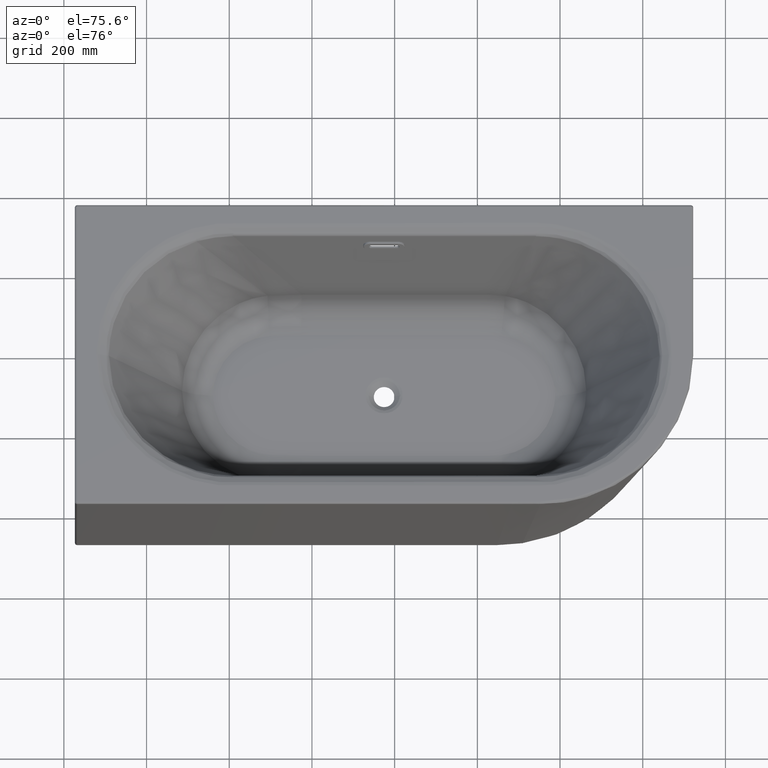
[diagram: clean part render]
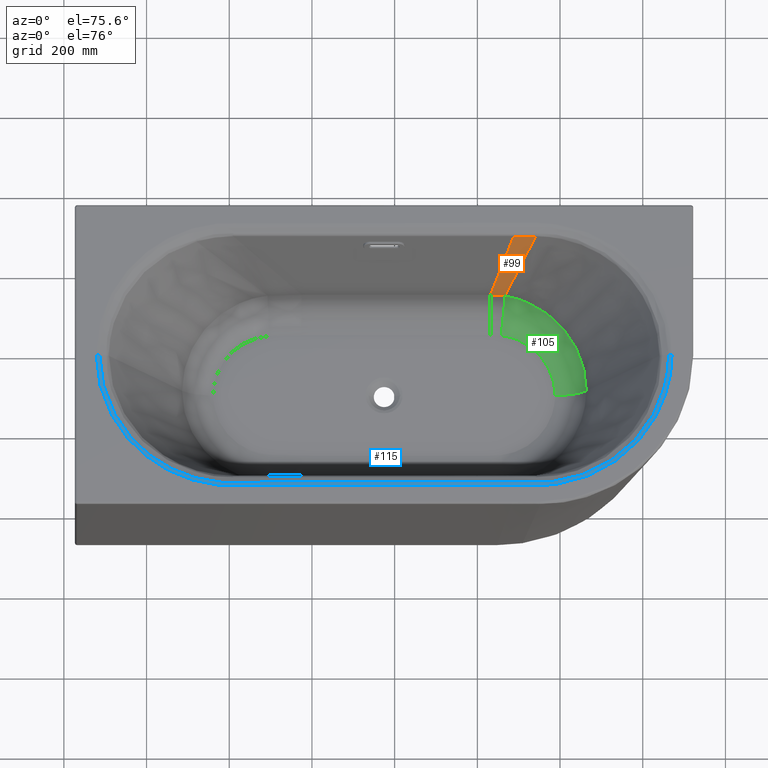
[diagram: same view with three faces highlighted in distinct colors, each labeled with its STEP entity id]
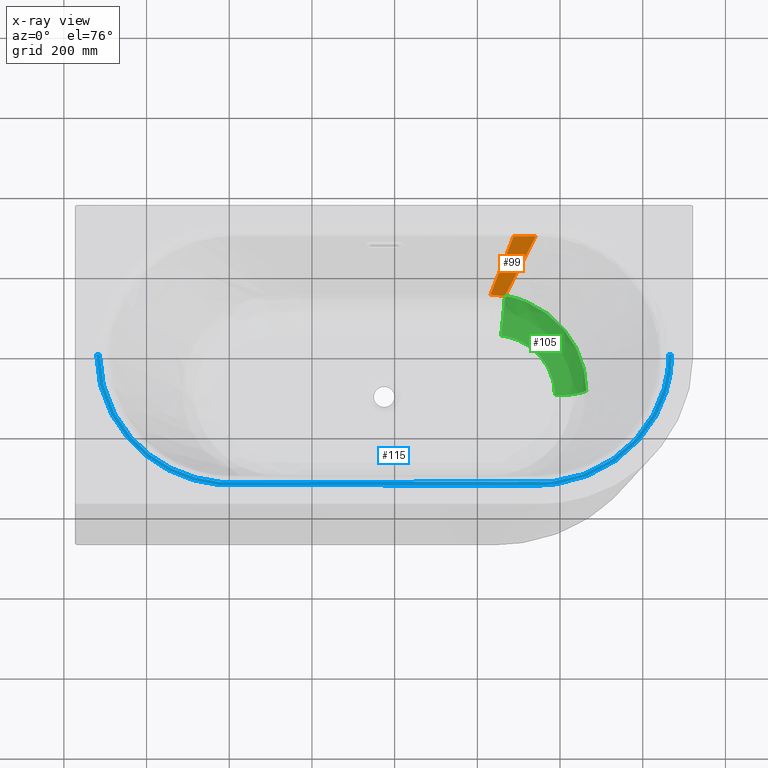
[diagram: x-ray of the same camera — body ghosted, the three highlighted faces saturated]
A machine part, auxiliary view with three faces highlighted in distinct colors.
The next image is the same camera in x-ray (body ghosted, the three faces saturated) — at least one of them is partly hidden behind the body in this view.
Their STEP definitions:

[orange] entity #99 — the highlighted face is a freeform B-spline surface patch.
#99=ADVANCED_FACE('',(#198),#2810,.T.);
#198=FACE_OUTER_BOUND('',#294,.T.);
#294=EDGE_LOOP('',(#494,#495,#496,#497));
#494=ORIENTED_EDGE('',*,*,#2392,.T.);
#495=ORIENTED_EDGE('',*,*,#2393,.T.);
#496=ORIENTED_EDGE('',*,*,#2394,.T.);
#497=ORIENTED_EDGE('',*,*,#2395,.T.);
#951=B_SPLINE_CURVE_WITH_KNOTS('',1,(#6418,#6419),.UNSPECIFIED.,.F.,.F.,
(2,2),(6.38428607241067,373.387949827397),.UNSPECIFIED.);
#952=B_SPLINE_CURVE_WITH_KNOTS('',3,(#6424,#6425,#6426,#6427),
 .UNSPECIFIED.,.F.,.F.,(4,4),(-9.88067805171769,16.2137053947109),
 .UNSPECIFIED.);
#953=B_SPLINE_CURVE_WITH_KNOTS('',1,(#6432,#6433),.UNSPECIFIED.,.F.,.F.,
(2,2),(-379.527583858333,-6.71367950718693),.UNSPECIFIED.);
#954=B_SPLINE_CURVE_WITH_KNOTS('',3,(#6441,#6442,#6443,#6444),
 .UNSPECIFIED.,.F.,.F.,(4,4),(-52.3274176513168,0.979602718965121),
 .UNSPECIFIED.);
#986=B_SPLINE_CURVE_WITH_KNOTS('',1,(#6843,#6844),.UNSPECIFIED.,.F.,.F.,
(2,2),(6.38428607241067,373.387949827397),.UNSPECIFIED.);
#998=B_SPLINE_CURVE_WITH_KNOTS('',1,(#7025,#7026),.UNSPECIFIED.,.F.,.F.,
(2,2),(-9.88067805171769,16.2137053947109),.UNSPECIFIED.);
#1060=B_SPLINE_CURVE_WITH_KNOTS('',1,(#7968,#7969),.UNSPECIFIED.,.F.,.F.,
(2,2),(-379.527583858333,-6.71367950718693),.UNSPECIFIED.);
#1094=B_SPLINE_CURVE_WITH_KNOTS('',1,(#8214,#8215),.UNSPECIFIED.,.F.,.F.,
(2,2),(-52.3274176513168,0.979602718965121),.UNSPECIFIED.);
#1403=PCURVE('',#2810,#1822);
#1404=PCURVE('',#2810,#1823);
#1405=PCURVE('',#2810,#1824);
#1406=PCURVE('',#2810,#1825);
#1430=PCURVE('',#2813,#1849);
#1441=PCURVE('',#2816,#1860);
#1495=PCURVE('',#2827,#1914);
#1529=PCURVE('',#2835,#1948);
#1822=DEFINITIONAL_REPRESENTATION('',(#951),#9406);
#1823=DEFINITIONAL_REPRESENTATION('',(#952),#9406);
#1824=DEFINITIONAL_REPRESENTATION('',(#953),#9406);
#1825=DEFINITIONAL_REPRESENTATION('',(#954),#9406);
#1849=DEFINITIONAL_REPRESENTATION('',(#986),#9406);
#1860=DEFINITIONAL_REPRESENTATION('',(#998),#9406);
#1914=DEFINITIONAL_REPRESENTATION('',(#1060),#9406);
#1948=DEFINITIONAL_REPRESENTATION('',(#1094),#9406);
#2181=SURFACE_CURVE('',#2571,(#1403,#1430),.PCURVE_S1.);
#2182=SURFACE_CURVE('',#2572,(#1404,#1441),.PCURVE_S1.);
#2183=SURFACE_CURVE('',#2573,(#1405,#1495),.PCURVE_S1.);
#2184=SURFACE_CURVE('',#2574,(#1406,#1529),.PCURVE_S1.);
#2392=EDGE_CURVE('',#2745,#2735,#2181,.T.);
#2393=EDGE_CURVE('',#2735,#2716,#2182,.T.);
#2394=EDGE_CURVE('',#2716,#2744,#2183,.T.);
#2395=EDGE_CURVE('',#2744,#2745,#2184,.T.);
#2571=(
BOUNDED_CURVE()
B_SPLINE_CURVE(3,(#6414,#6415,#6416,#6417),.UNSPECIFIED.,.F.,.F.)
B_SPLINE_CURVE_WITH_KNOTS((4,4),(6.38428607241067,373.387949827397),
 .UNSPECIFIED.)
CURVE()
GEOMETRIC_REPRESENTATION_ITEM()
RATIONAL_B_SPLINE_CURVE((1.,1.,1.,1.))
REPRESENTATION_ITEM('')
);
#2572=(
BOUNDED_CURVE()
B_SPLINE_CURVE(3,(#6420,#6421,#6422,#6423),.UNSPECIFIED.,.F.,.F.)
B_SPLINE_CURVE_WITH_KNOTS((4,4),(-9.88067805171769,16.2137053947109),
 .UNSPECIFIED.)
CURVE()
GEOMETRIC_REPRESENTATION_ITEM()
RATIONAL_B_SPLINE_CURVE((1.,1.,0.999999999999999,1.))
REPRESENTATION_ITEM('')
);
#2573=(
BOUNDED_CURVE()
B_SPLINE_CURVE(3,(#6428,#6429,#6430,#6431),.UNSPECIFIED.,.F.,.F.)
B_SPLINE_CURVE_WITH_KNOTS((4,4),(-379.527583858333,-6.71367950718693),
 .UNSPECIFIED.)
CURVE()
GEOMETRIC_REPRESENTATION_ITEM()
RATIONAL_B_SPLINE_CURVE((1.,1.00021977919637,1.0002176230739,1.))
REPRESENTATION_ITEM('')
);
#2574=(
BOUNDED_CURVE()
B_SPLINE_CURVE(3,(#6434,#6435,#6436,#6437,#6438,#6439,#6440),
 .UNSPECIFIED.,.F.,.F.)
B_SPLINE_CURVE_WITH_KNOTS((4,3,4),(-52.3274176513168,-52.3274019067252,
0.979602718965121),.UNSPECIFIED.)
CURVE()
GEOMETRIC_REPRESENTATION_ITEM()
RATIONAL_B_SPLINE_CURVE((1.,1.,1.,1.,1.,1.,1.))
REPRESENTATION_ITEM('')
);
#2716=VERTEX_POINT('',#6228);
#2735=VERTEX_POINT('',#6247);
#2744=VERTEX_POINT('',#6256);
#2745=VERTEX_POINT('',#6257);
#2810=(
BOUNDED_SURFACE()
B_SPLINE_SURFACE(2,3,((#3890,#3891,#3892,#3893),(#3894,#3895,#3896,#3897),
(#3898,#3899,#3900,#3901)),.UNSPECIFIED.,.F.,.F.,.F.)
B_SPLINE_SURFACE_WITH_KNOTS((3,3),(4,4),(417.021239269491,463.23218296888),
(0.,452.313264858247),.UNSPECIFIED.)
GEOMETRIC_REPRESENTATION_ITEM()
RATIONAL_B_SPLINE_SURFACE(((1.,0.98246427923247,0.964928558464939,0.947392837697409),
(1.,0.990260555762933,0.980521111525865,0.970781667288798),(1.,1.,1.,1.)))
REPRESENTATION_ITEM('')
SURFACE()
);
#2813=(
BOUNDED_SURFACE()
B_SPLINE_SURFACE(2,3,((#3930,#3931,#3932,#3933),(#3934,#3935,#3936,#3937),
(#3938,#3939,#3940,#3941)),.UNSPECIFIED.,.F.,.F.,.F.)
B_SPLINE_SURFACE_WITH_KNOTS((3,3),(4,4),(463.23218296888,1051.59267119112),
(0.,452.313264858247),.UNSPECIFIED.)
GEOMETRIC_REPRESENTATION_ITEM()
RATIONAL_B_SPLINE_SURFACE(((1.,1.,1.,1.),(1.,1.,1.,1.),(1.,1.,1.,1.)))
REPRESENTATION_ITEM('')
SURFACE()
);
#2816=(
BOUNDED_SURFACE()
B_SPLINE_SURFACE(3,2,((#4044,#4045,#4046),(#4047,#4048,#4049),(#4050,#4051,
#4052),(#4053,#4054,#4055),(#4056,#4057,#4058),(#4059,#4060,#4061),(#4062,
#4063,#4064),(#4065,#4066,#4067),(#4068,#4069,#4070),(#4071,#4072,#4073),
(#4074,#4075,#4076),(#4077,#4078,#4079),(#4080,#4081,#4082),(#4083,#4084,
#4085),(#4086,#4087,#4088),(#4089,#4090,#4091),(#4092,#4093,#4094),(#4095,
#4096,#4097),(#4098,#4099,#4100),(#4101,#4102,#4103),(#4104,#4105,#4106),
(#4107,#4108,#4109),(#4110,#4111,#4112),(#4113,#4114,#4115),(#4116,#4117,
#4118),(#4119,#4120,#4121)),.UNSPECIFIED.,.F.,.F.,.F.)
B_SPLINE_SURFACE_WITH_KNOTS((4,1,1,1,1,1,1,1,1,1,1,1,1,1,1,1,1,1,1,1,3,
4),(3,3),(-343.764234858116,-333.108706755894,-322.422227100932,-311.70991596603,
-300.977765148931,-279.478203624683,-257.970396569492,-236.498316930419,
-215.103858823316,-193.82786186973,-172.710942467045,-151.794315807854,
-141.424482186279,-131.121230022666,-120.89073630039,-110.73968300638,-90.7050180489012,
-71.076317634846,-51.9011897780831,-33.1955652267284,-16.2137053947109,
9.88067805171769),(0.,116.895873126211),.UNSPECIFIED.)
GEOMETRIC_REPRESENTATION_ITEM()
RATIONAL_B_SPLINE_SURFACE(((1.,0.92790127377219,1.),(0.999999999999998,
0.929202732631891,0.999999999999998),(0.999999999999999,0.931303520089596,
0.999999999999999),(1.,0.933441323560378,1.),(1.,0.934833871513463,1.),
(1.,0.935880043937455,1.),(0.999999999999997,0.935909667889082,0.999999999999997),
(1.,0.934228704873188,1.),(1.,0.93087575872304,1.),(0.999999999999999,0.925733835326761,
0.999999999999999),(1.,0.918547125585417,1.),(1.,0.908957253192563,1.),
(0.999999999999999,0.898602730781016,0.999999999999999),(0.999999999999999,
0.888779805434802,0.999999999999999),(1.,0.880700669695107,1.),(1.,0.871942133778937,
1.),(1.,0.859592825783179,1.),(0.999999999999999,0.843233599529752,0.999999999999999),
(1.,0.823941962421488,1.),(0.999999999999999,0.80690964477917,0.999999999999999),
(1.,0.793471625998033,1.),(1.,0.786777204977123,1.),(1.,0.784076274600986,
1.),(0.999999999999999,0.779924663064337,0.999999999999999),(1.,0.776922832488985,
1.),(1.,0.775061215074236,1.)))
REPRESENTATION_ITEM('')
SURFACE()
);
#2827=(
BOUNDED_SURFACE()
B_SPLINE_SURFACE(2,3,((#4732,#4733,#4734,#4735),(#4736,#4737,#4738,#4739),
(#4740,#4741,#4742,#4743)),.UNSPECIFIED.,.F.,.F.,.F.)
B_SPLINE_SURFACE_WITH_KNOTS((3,3),(4,4),(0.,417.021239269491),(0.,452.313264858247),
 .UNSPECIFIED.)
GEOMETRIC_REPRESENTATION_ITEM()
RATIONAL_B_SPLINE_SURFACE(((1.,1.,1.,1.),(0.707106781186548,0.716846225423615,
0.726585669660682,0.73632511389775),(1.,0.98246427923247,0.964928558464939,
0.947392837697409)))
REPRESENTATION_ITEM('')
SURFACE()
);
#2835=(
BOUNDED_SURFACE()
B_SPLINE_SURFACE(2,3,((#4867,#4868,#4869,#4870,#4871,#4872,#4873,#4874,
#4875,#4876,#4877,#4878,#4879,#4880,#4881),(#4882,#4883,#4884,#4885,#4886,
#4887,#4888,#4889,#4890,#4891,#4892,#4893,#4894,#4895,#4896),(#4897,#4898,
#4899,#4900,#4901,#4902,#4903,#4904,#4905,#4906,#4907,#4908,#4909,#4910,
#4911)),.UNSPECIFIED.,.F.,.F.,.F.)
B_SPLINE_SURFACE_WITH_KNOTS((3,3),(4,3,1,1,1,1,1,1,1,1,4),(0.,10.3764041123288),
(-0.979602718965118,52.3273861621428,53.9721750379053,55.6169639136678,
58.8987465993843,62.1804309440276,65.4621152886709,71.8985618918663,78.3350084950618,
91.2026281126551,104.070247730248),.UNSPECIFIED.)
GEOMETRIC_REPRESENTATION_ITEM()
RATIONAL_B_SPLINE_SURFACE(((1.,1.,1.,1.,0.999999999999999,1.,1.,0.999999999999999,
1.,1.,1.,1.,1.,1.,1.),(0.891974068430177,0.891988301047794,0.892419806799941,
0.893320225144919,0.893347787806994,0.893404884473295,0.89351915548016,
0.89365995343098,0.893826447040567,0.894042718101232,0.894304972664122,
0.894708449647752,0.895184804464308,0.895534275111717,0.89570076708267),
(1.,1.,1.,1.,0.999999999999999,1.,1.,0.999999999999999,1.,1.,1.,1.,1.,1.,
1.)))
REPRESENTATION_ITEM('')
SURFACE()
);
#3890=CARTESIAN_POINT('',(342.6080292697,-844.570991800494,-11.));
#3891=CARTESIAN_POINT('',(313.294364003134,-871.028535757954,-136.037901005488));
#3892=CARTESIAN_POINT('',(282.915259758152,-898.447709670219,-265.620448758458));
#3893=CARTESIAN_POINT('',(251.411554464883,-926.88191126323,-400.));
#3894=CARTESIAN_POINT('',(315.809427211807,-844.570991800494,-11.));
#3895=CARTESIAN_POINT('',(289.596828209696,-870.713112656511,-138.116062662383));
#3896=CARTESIAN_POINT('',(262.86349356347,-897.374569048138,-267.757394366673));
#3897=CARTESIAN_POINT('',(235.593750307912,-924.570991800494,-400.));
#3898=CARTESIAN_POINT('',(289.010825153914,-844.570991800494,-11.));
#3899=CARTESIAN_POINT('',(265.876559859176,-871.23765846716,-140.666666666667));
#3900=CARTESIAN_POINT('',(242.742294564438,-897.904325133827,-270.333333333333));
#3901=CARTESIAN_POINT('',(219.6080292697,-924.570991800494,-400.));
#3930=CARTESIAN_POINT('',(289.010825153914,-844.570991800494,-11.));
#3931=CARTESIAN_POINT('',(265.876559859176,-871.23765846716,-140.666666666667));
#3932=CARTESIAN_POINT('',(242.742294564438,-897.904325133827,-270.333333333333));
#3933=CARTESIAN_POINT('',(219.6080292697,-924.570991800494,-400.));
#3934=CARTESIAN_POINT('',(-52.1905727881931,-844.570991800494,-11.));
#3935=CARTESIAN_POINT('',(-29.7569528901696,-871.23765846716,-140.666666666667));
#3936=CARTESIAN_POINT('',(-7.32333299214597,-897.904325133827,-270.333333333333));
#3937=CARTESIAN_POINT('',(15.1102869058776,-924.570991800494,-400.));
#3938=CARTESIAN_POINT('',(-393.3919707303,-844.570991800494,-11.));
#3939=CARTESIAN_POINT('',(-325.390465639515,-871.23765846716,-140.666666666667));
#3940=CARTESIAN_POINT('',(-257.38896054873,-897.904325133827,-270.333333333333));
#3941=CARTESIAN_POINT('',(-189.387455457945,-924.570991800494,-400.));
#4044=CARTESIAN_POINT('',(427.126659051643,-1270.41406869041,-376.370131557553));
#4045=CARTESIAN_POINT('',(407.023146954717,-1256.13555619131,-399.999999999993));
#4046=CARTESIAN_POINT('',(379.179007063392,-1236.35926548406,-400.));
#4047=CARTESIAN_POINT('',(429.819562495683,-1265.88083201094,-376.78074580176));
#4048=CARTESIAN_POINT('',(409.367980888363,-1252.23871999713,-400.000000000367));
#4049=CARTESIAN_POINT('',(381.235676839368,-1233.46317703947,-400.));
#4050=CARTESIAN_POINT('',(434.818654998029,-1256.83655194397,-377.445089295788));
#4051=CARTESIAN_POINT('',(413.759417664899,-1244.41210382652,-399.999999999319));
#4052=CARTESIAN_POINT('',(385.103954460701,-1227.48551428493,-400.));
#4053=CARTESIAN_POINT('',(441.327527001441,-1243.19550217276,-378.123001871809));
#4054=CARTESIAN_POINT('',(419.529831675247,-1232.49513068778,-400.000000000756));
#4055=CARTESIAN_POINT('',(390.183234571317,-1218.07577385501,-400.));
#4056=CARTESIAN_POINT('',(446.941100674023,-1229.3957442594,-378.565372376374));
#4057=CARTESIAN_POINT('',(424.524349152335,-1220.36787865477,-400.000000000901));
#4058=CARTESIAN_POINT('',(394.551737886965,-1208.28881713294,-400.));
#4059=CARTESIAN_POINT('',(453.281966788896,-1210.75471172879,-378.898126337092));
#4060=CARTESIAN_POINT('',(430.169578102467,-1203.92013862873,-399.999999999808));
#4061=CARTESIAN_POINT('',(399.427143533244,-1194.8195063471,-400.));
#4062=CARTESIAN_POINT('',(459.100601900934,-1187.04107015232,-378.907571846694));
#4063=CARTESIAN_POINT('',(435.333419504684,-1182.89102294812,-400.000000000149));
#4064=CARTESIAN_POINT('',(403.719170493594,-1177.38320713146,-400.));
#4065=CARTESIAN_POINT('',(462.746252935772,-1158.06948963175,-378.372823169629));
#4066=CARTESIAN_POINT('',(438.492751666518,-1157.15183786667,-399.999999999927));
#4067=CARTESIAN_POINT('',(405.961787915521,-1155.95701359385,-400.));
#4068=CARTESIAN_POINT('',(463.016496293694,-1128.8096852308,-377.309081182897));
#4069=CARTESIAN_POINT('',(438.595634926385,-1131.17411028438,-400.000000000045));
#4070=CARTESIAN_POINT('',(405.290677509262,-1134.4597381794,-400.));
#4071=CARTESIAN_POINT('',(459.848103856891,-1099.54692821988,-375.685056323578));
#4072=CARTESIAN_POINT('',(435.630303342192,-1105.25153749211,-399.999999999974));
#4073=CARTESIAN_POINT('',(401.737096839088,-1113.32586615766,-400.));
#4074=CARTESIAN_POINT('',(453.162942045786,-1070.61127168246,-373.430052588334));
#4075=CARTESIAN_POINT('',(429.600247116277,-1079.68142634427,-400.000000000014));
#4076=CARTESIAN_POINT('',(395.380354635828,-1092.98304684823,-400.));
#4077=CARTESIAN_POINT('',(442.877237610787,-1042.39302118246,-370.44786766877));
#4078=CARTESIAN_POINT('',(420.522973155245,-1054.76234240313,-399.99999999999));
#4079=CARTESIAN_POINT('',(386.355485378965,-1073.85013378842,-400.));
#4080=CARTESIAN_POINT('',(431.214330566595,-1019.82696178203,-367.266204649981));
#4081=CARTESIAN_POINT('',(410.440831956437,-1034.79124194094,-400.000000000005));
#4082=CARTESIAN_POINT('',(376.752122944815,-1059.2069632795,-400.));
#4083=CARTESIAN_POINT('',(420.03359599054,-1002.70676780147,-364.284602298032));
#4084=CARTESIAN_POINT('',(400.9034609338,-1019.49315439456,-399.999999999998));
#4085=CARTESIAN_POINT('',(367.958929312732,-1048.47739708061,-400.));
#4086=CARTESIAN_POINT('',(410.786584740861,-990.481600741961,-361.85373146755));
#4087=CARTESIAN_POINT('',(393.032512983775,-1008.4158277411,-400.000000000005));
#4088=CARTESIAN_POINT('',(360.881220938974,-1040.98382322213,-400.));
#4089=CARTESIAN_POINT('',(400.69547543104,-978.940628038987,-359.243539552081));
#4090=CARTESIAN_POINT('',(384.465086567682,-997.797344960047,-399.999999999997));
#4091=CARTESIAN_POINT('',(353.349551026757,-1034.05392302093,-400.));
#4092=CARTESIAN_POINT('',(386.284109415129,-964.677851443439,-355.601032232623));
#4093=CARTESIAN_POINT('',(372.178228706913,-984.361723580464,-400.000000000002));
#4094=CARTESIAN_POINT('',(342.82331870328,-1025.63232208472,-400.));
#4095=CARTESIAN_POINT('',(366.63476952935,-949.10172751029,-350.854866097196));
#4096=CARTESIAN_POINT('',(355.3169154981,-969.108936703746,-399.999999999998));
#4097=CARTESIAN_POINT('',(328.843859757065,-1016.60412780361,-400.));
#4098=CARTESIAN_POINT('',(341.348293294153,-934.45327693942,-345.39042437352));
#4099=CARTESIAN_POINT('',(333.289054230214,-953.845027685818,-399.999999999984));
#4100=CARTESIAN_POINT('',(311.125208128772,-1008.11161385683,-400.));
#4101=CARTESIAN_POINT('',(315.563387092102,-923.830247912644,-340.67405797026));
#4102=CARTESIAN_POINT('',(310.241095183608,-941.924243068126,-400.000000000045));
#4103=CARTESIAN_POINT('',(292.982781416084,-1001.83472720863,-400.));
#4104=CARTESIAN_POINT('',(290.622583570652,-916.865797652334,-337.024114235778));
#4105=CARTESIAN_POINT('',(287.381425102315,-933.48481093813,-399.999999999892));
#4106=CARTESIAN_POINT('',(275.166906121314,-997.618240519111,-400.));
#4107=CARTESIAN_POINT('',(274.432934938687,-914.035274122186,-335.231911418777));
#4108=CARTESIAN_POINT('',(272.295918610589,-929.771265197022,-400.000000000205));
#4109=CARTESIAN_POINT('',(263.389580022073,-995.879826715015,-400.));
#4110=CARTESIAN_POINT('',(266.76448035308,-913.024868554009,-334.511852752085));
#4111=CARTESIAN_POINT('',(265.083866543185,-928.378488400297,-399.999999999649));
#4112=CARTESIAN_POINT('',(257.762564170269,-995.263868466835,-400.));
#4113=CARTESIAN_POINT('',(254.979931330727,-911.473857629685,-333.405281472169));
#4114=CARTESIAN_POINT('',(253.903287727172,-926.220879716367,-400.000000000295));
#4115=CARTESIAN_POINT('',(249.115593547985,-994.317693344081,-400.));
#4116=CARTESIAN_POINT('',(243.28285362921,-910.713241835819,-332.613060611107));
#4117=CARTESIAN_POINT('',(242.775581490838,-924.98764122926,-400.000000000064));
#4118=CARTESIAN_POINT('',(240.416191880268,-993.869321259235,-400.));
#4119=CARTESIAN_POINT('',(231.718303176657,-910.611584254826,-332.122380809189));
#4120=CARTESIAN_POINT('',(231.718303176657,-924.570991800432,-399.999999999995));
#4121=CARTESIAN_POINT('',(231.718303176662,-993.869160939568,-400.));
#4732=CARTESIAN_POINT('',(642.6080292697,-1144.57099180049,-11.));
#4733=CARTESIAN_POINT('',(574.941362603033,-1144.57099180049,-140.666666666667));
#4734=CARTESIAN_POINT('',(507.274695936367,-1144.57099180049,-270.333333333333));
#4735=CARTESIAN_POINT('',(439.6080292697,-1144.57099180049,-400.));
#4736=CARTESIAN_POINT('',(642.6080292697,-844.570991800494,-11.));
#4737=CARTESIAN_POINT('',(573.102653816309,-882.167473148496,-144.190103701325));
#4738=CARTESIAN_POINT('',(505.460633935898,-918.756038021157,-273.809540812064));
#4739=CARTESIAN_POINT('',(439.6080292697,-954.376681847623,-400.));
#4740=CARTESIAN_POINT('',(342.6080292697,-844.570991800494,-11.));
#4741=CARTESIAN_POINT('',(313.294364003134,-871.028535757954,-136.037901005488));
#4742=CARTESIAN_POINT('',(282.915259758152,-898.447709670219,-265.620448758458));
#4743=CARTESIAN_POINT('',(251.411554464883,-926.88191126323,-400.));
#4867=CARTESIAN_POINT('',(288.031222437003,-839.475188822195,-8.66442363494645));
#4868=CARTESIAN_POINT('',(305.800218216472,-839.474851248968,-8.66426891388412));
#4869=CARTESIAN_POINT('',(323.569216001253,-839.476732059248,-8.66513095192933));
#4870=CARTESIAN_POINT('',(341.338157034377,-839.48110301297,-8.66713430571842));
#4871=CARTESIAN_POINT('',(341.889778966345,-839.481212884812,-8.66707728539932));
#4872=CARTESIAN_POINT('',(342.980811477031,-839.481642704033,-8.66790411325458));
#4873=CARTESIAN_POINT('',(345.133158088559,-839.481225956976,-8.66393985973064));
#4874=CARTESIAN_POINT('',(347.831000794698,-839.478221067419,-8.64793762355793));
#4875=CARTESIAN_POINT('',(351.061956318016,-839.470632965927,-8.61127502964237));
#4876=CARTESIAN_POINT('',(355.330349056636,-839.455269653286,-8.53970206828759));
#4877=CARTESIAN_POINT('',(360.632731174677,-839.426227901321,-8.40818994954852));
#4878=CARTESIAN_POINT('',(369.079749191492,-839.358338349958,-8.10888507348439));
#4879=CARTESIAN_POINT('',(379.630995817295,-839.231780969792,-7.56693357274563));
#4880=CARTESIAN_POINT('',(388.062030321602,-839.083071613676,-6.95604195180842));
#4881=CARTESIAN_POINT('',(392.274382119813,-838.995992986132,-6.60690884308439));
#4882=CARTESIAN_POINT('',(288.031222437003,-844.570991800493,-10.9999999999997));
#4883=CARTESIAN_POINT('',(305.797517480842,-844.570573708332,-10.999808374444));
#4884=CARTESIAN_POINT('',(323.546018520883,-844.569984552252,-10.9995383445878));
#4885=CARTESIAN_POINT('',(341.329629296794,-844.569221148962,-10.9991884513814));
#4886=CARTESIAN_POINT('',(341.879885588299,-844.569173990337,-10.9990535669358));
#4887=CARTESIAN_POINT('',(342.972743826582,-844.569274947709,-10.9997518904489));
#4888=CARTESIAN_POINT('',(345.138894289641,-844.568242038492,-10.9954339771939));
#4889=CARTESIAN_POINT('',(347.850516027589,-844.564548482609,-10.97874513685));
#4890=CARTESIAN_POINT('',(351.099942668454,-844.556261309524,-10.9408862931197));
#4891=CARTESIAN_POINT('',(355.391648635279,-844.540143754701,-10.867237253453));
#4892=CARTESIAN_POINT('',(360.723600432375,-844.510473251638,-10.732236105885));
#4893=CARTESIAN_POINT('',(369.217346772385,-844.44222333963,-10.4254671360048));
#4894=CARTESIAN_POINT('',(379.827877880888,-844.316392895046,-9.87064061997511));
#4895=CARTESIAN_POINT('',(388.309342702693,-844.16937961199,-9.24554467398459));
#4896=CARTESIAN_POINT('',(392.546910714307,-844.08340242319,-8.88839723186431));
#4897=CARTESIAN_POINT('',(288.031222437003,-845.700171343687,-16.4906355287764));
#4898=CARTESIAN_POINT('',(305.796029065398,-845.700083191655,-16.4902782185482));
#4899=CARTESIAN_POINT('',(323.560468628453,-845.709417415333,-16.4852275728117));
#4900=CARTESIAN_POINT('',(341.324546406609,-845.729420948131,-16.4747163726553));
#4901=CARTESIAN_POINT('',(341.872658154867,-845.730011027158,-16.474266738624));
#4902=CARTESIAN_POINT('',(342.968876693322,-845.731418541171,-16.4743322232442));
#4903=CARTESIAN_POINT('',(345.158739169933,-845.733093120584,-16.4686887561036));
#4904=CARTESIAN_POINT('',(347.894103656777,-845.732911177074,-16.4502132044571));
#4905=CARTESIAN_POINT('',(351.174894586261,-845.729058295672,-16.4100093148584));
#4906=CARTESIAN_POINT('',(355.506745024607,-845.719077108757,-16.332989517572));
#4907=CARTESIAN_POINT('',(360.889256103406,-845.697547510753,-16.1932979975252));
#4908=CARTESIAN_POINT('',(369.463563035971,-845.64331501698,-15.8779931732186));
#4909=CARTESIAN_POINT('',(380.174469574179,-845.536887902894,-15.3105223820481));
#4910=CARTESIAN_POINT('',(388.732922417918,-845.407249868713,-14.6734899994073));
#4911=CARTESIAN_POINT('',(393.008894756439,-845.330356686385,-14.3099165478442));
#6228=CARTESIAN_POINT('',(266.764480353079,-913.024868554009,-334.511852752085));
#6247=CARTESIAN_POINT('',(231.718303176656,-910.61158425482,-332.12238080916));
#6256=CARTESIAN_POINT('',(341.324587092306,-845.72936442976,-16.4745316272068));
#6257=CARTESIAN_POINT('',(288.03122243711,-845.700171343563,-16.4906355281752));
#6414=CARTESIAN_POINT('',(288.03122243711,-845.700171343563,-16.4906355281752));
#6415=CARTESIAN_POINT('',(269.260249350292,-867.337308980649,-121.701217288503));
#6416=CARTESIAN_POINT('',(250.489276263474,-888.974446617734,-226.911799048832));
#6417=CARTESIAN_POINT('',(231.718303176656,-910.61158425482,-332.12238080916));
#6418=CARTESIAN_POINT('',(463.23218296888,6.3842860724101));
#6419=CARTESIAN_POINT('',(463.23218296888,373.387949827397));
#6420=CARTESIAN_POINT('',(231.718303176656,-910.61158425482,-332.12238080916));
#6421=CARTESIAN_POINT('',(243.282853629209,-910.713241835815,-332.613060611087));
#6422=CARTESIAN_POINT('',(254.979931330727,-911.473857629683,-333.405281472159));
#6423=CARTESIAN_POINT('',(266.764480353079,-913.024868554009,-334.511852752085));
#6424=CARTESIAN_POINT('',(463.23218296888,373.387949827397));
#6425=CARTESIAN_POINT('',(447.809009471176,375.22999604277));
#6426=CARTESIAN_POINT('',(432.405305834624,377.289096191274));
#6427=CARTESIAN_POINT('',(417.021239269491,379.527583858333));
#6428=CARTESIAN_POINT('',(266.76448035308,-913.024868554009,-334.511852752085));
#6429=CARTESIAN_POINT('',(292.358272929486,-889.924751759585,-225.341123465241));
#6430=CARTESIAN_POINT('',(317.200774487789,-867.502725569087,-119.375037964906));
#6431=CARTESIAN_POINT('',(341.324587092306,-845.72936442976,-16.4745316272068));
#6432=CARTESIAN_POINT('',(417.021239269491,379.527583858333));
#6433=CARTESIAN_POINT('',(417.021239269491,6.71384475328686));
#6434=CARTESIAN_POINT('',(341.324587092306,-845.72936442976,-16.4745316272068));
#6435=CARTESIAN_POINT('',(341.324581845555,-845.729364424117,-16.474531631529));
#6436=CARTESIAN_POINT('',(341.324576598804,-845.729364418474,-16.4745316358512));
#6437=CARTESIAN_POINT('',(341.324571352054,-845.729364412831,-16.4745316401735));
#6438=CARTESIAN_POINT('',(323.560485258952,-845.709379724714,-16.4851044163881));
#6439=CARTESIAN_POINT('',(305.796037380786,-845.700064346093,-16.4902166394111));
#6440=CARTESIAN_POINT('',(288.03122243711,-845.700171343563,-16.4906355281752));
#6441=CARTESIAN_POINT('',(417.021239269491,6.71384475328686));
#6442=CARTESIAN_POINT('',(432.424961768225,6.61803048367061));
#6443=CARTESIAN_POINT('',(447.828599091576,6.50647068184168));
#6444=CARTESIAN_POINT('',(463.23218296888,6.3842860724101));
#6843=CARTESIAN_POINT('',(463.23218296888,6.38428606996366));
#6844=CARTESIAN_POINT('',(463.23218296888,373.387949827278));
#7025=CARTESIAN_POINT('',(9.88067805171769,0.));
#7026=CARTESIAN_POINT('',(-16.2137053947109,0.));
#7968=CARTESIAN_POINT('',(417.021239269491,379.527583858333));
#7969=CARTESIAN_POINT('',(417.021239269491,6.71367950718688));
#8214=CARTESIAN_POINT('',(10.3764041123288,52.3274019067298));
#8215=CARTESIAN_POINT('',(10.3764041123288,-0.979602718965118));
#9406=(
GEOMETRIC_REPRESENTATION_CONTEXT(2)
PARAMETRIC_REPRESENTATION_CONTEXT()
REPRESENTATION_CONTEXT('pspace','')
);

[blue] entity #115 — the highlighted face is a freeform B-spline surface patch.
#115=ADVANCED_FACE('',(#214),#2825,.T.);
#214=FACE_OUTER_BOUND('',#312,.T.);
#312=EDGE_LOOP('',(#576,#577,#578,#579));
#576=ORIENTED_EDGE('',*,*,#2445,.T.);
#577=ORIENTED_EDGE('',*,*,#2446,.T.);
#578=ORIENTED_EDGE('',*,*,#2447,.T.);
#579=ORIENTED_EDGE('',*,*,#2438,.F.);
#1041=B_SPLINE_CURVE_WITH_KNOTS('',3,(#7664,#7665,#7666,#7667,#7668,#7669,
#7670,#7671,#7672,#7673),.UNSPECIFIED.,.F.,.F.,(4,3,3,4),(-1767.5887006782,
-1251.7944359733,-515.794387679867,0.),.UNSPECIFIED.);
#1050=B_SPLINE_CURVE_WITH_KNOTS('',1,(#7783,#7784),.UNSPECIFIED.,.F.,.F.,
(2,2),(0.,8.59524558257189),.UNSPECIFIED.);
#1051=B_SPLINE_CURVE_WITH_KNOTS('',1,(#7837,#7838),.UNSPECIFIED.,.F.,.F.,
(2,2),(-1767.58870767092,0.),.UNSPECIFIED.);
#1052=B_SPLINE_CURVE_WITH_KNOTS('',1,(#7842,#7843),.UNSPECIFIED.,.F.,.F.,
(2,2),(-8.59524558257189,0.),.UNSPECIFIED.);
#1053=B_SPLINE_CURVE_WITH_KNOTS('',1,(#7844,#7845),.UNSPECIFIED.,.F.,.F.,
(2,2),(-1767.5887006782,0.),.UNSPECIFIED.);
#1132=B_SPLINE_CURVE_WITH_KNOTS('',3,(#8598,#8599,#8600,#8601,#8602,#8603,
#8604,#8605,#8606,#8607,#8608,#8609,#8610,#8611,#8612,#8613,#8614,#8615,
#8616,#8617,#8618,#8619,#8620,#8621,#8622,#8623,#8624,#8625,#8626,#8627,
#8628,#8629,#8630,#8631,#8632,#8633,#8634,#8635,#8636,#8637,#8638,#8639,
#8640,#8641,#8642,#8643,#8644,#8645,#8646,#8647,#8648,#8649),
 .UNSPECIFIED.,.F.,.F.,(4,3,3,3,3,3,3,3,3,3,3,3,3,3,3,3,3,4),(-1767.58870767092,
-1707.50368845533,-1643.80859826056,-1577.45658933277,-1509.69153075317,
-1441.92647217356,-1375.57446324577,-1311.879373051,-1251.79435383544,-515.794353835452,
-455.709334619889,-392.01424442512,-325.662235497329,-257.897176917733,
-190.132118338125,-123.780109410334,-60.0850192155648,0.),.UNSPECIFIED.);
#1268=B_SPLINE_CURVE_WITH_KNOTS('',1,(#9397,#9398),.UNSPECIFIED.,.F.,.F.,
(2,2),(-8.59524558257189,0.),.UNSPECIFIED.);
#1270=B_SPLINE_CURVE_WITH_KNOTS('',1,(#9401,#9402),.UNSPECIFIED.,.F.,.F.,
(2,2),(0.,8.59524558257189),.UNSPECIFIED.);
#1478=PCURVE('',#2824,#1897);
#1485=PCURVE('',#2825,#1904);
#1486=PCURVE('',#2825,#1905);
#1487=PCURVE('',#2825,#1906);
#1488=PCURVE('',#2825,#1907);
#1562=PCURVE('',#2885,#1981);
#1687=PCURVE('',#2865,#2106);
#1689=PCURVE('',#2865,#2108);
#1897=DEFINITIONAL_REPRESENTATION('',(#1041),#9406);
#1904=DEFINITIONAL_REPRESENTATION('',(#1050),#9406);
#1905=DEFINITIONAL_REPRESENTATION('',(#1051),#9406);
#1906=DEFINITIONAL_REPRESENTATION('',(#1052),#9406);
#1907=DEFINITIONAL_REPRESENTATION('',(#1053),#9406);
#1981=DEFINITIONAL_REPRESENTATION('',(#1132),#9406);
#2106=DEFINITIONAL_REPRESENTATION('',(#1268),#9406);
#2108=DEFINITIONAL_REPRESENTATION('',(#1270),#9406);
#2227=SURFACE_CURVE('',#2602,(#1478,#1488),.PCURVE_S1.);
#2234=SURFACE_CURVE('',#2607,(#1485,#1689),.PCURVE_S1.);
#2235=SURFACE_CURVE('',#2608,(#1486,#1562),.PCURVE_S1.);
#2236=SURFACE_CURVE('',#2609,(#1487,#1687),.PCURVE_S1.);
#2438=EDGE_CURVE('',#2797,#2741,#2227,.T.);
#2445=EDGE_CURVE('',#2797,#2798,#2234,.T.);
#2446=EDGE_CURVE('',#2798,#2740,#2235,.T.);
#2447=EDGE_CURVE('',#2740,#2741,#2236,.T.);
#2602=(
BOUNDED_CURVE()
B_SPLINE_CURVE(3,(#7612,#7613,#7614,#7615,#7616,#7617,#7618,#7619,#7620,
#7621,#7622,#7623,#7624,#7625,#7626,#7627,#7628,#7629,#7630,#7631,#7632,
#7633,#7634,#7635,#7636,#7637,#7638,#7639,#7640,#7641,#7642,#7643,#7644,
#7645,#7646,#7647,#7648,#7649,#7650,#7651,#7652,#7653,#7654,#7655,#7656,
#7657,#7658,#7659,#7660,#7661,#7662,#7663),.UNSPECIFIED.,.F.,.F.)
B_SPLINE_CURVE_WITH_KNOTS((4,3,3,3,3,3,3,3,3,3,3,3,3,3,3,3,3,4),(-1767.5887006782,
-1707.50368845536,-1643.80859826059,-1577.4565893328,-1509.6915307532,-1441.92647217359,
-1375.5744632458,-1311.87937305103,-1251.79435383546,-515.794353835462,
-455.709334619897,-392.014244425127,-325.662235497335,-257.897176917737,
-190.132118338129,-123.780109410336,-60.085019215566,0.),.UNSPECIFIED.)
CURVE()
GEOMETRIC_REPRESENTATION_ITEM()
RATIONAL_B_SPLINE_CURVE((1.,1.,1.,1.,1.,1.,1.,1.,1.,0.999999999999999,0.999999999999999,
0.999999999999999,1.,1.,1.,1.,1.,1.,1.,0.999999999999999,0.999999999999999,
0.999999999999999,0.999999999999999,1.,1.,1.,1.,1.,0.999999999999999,0.999999999999998,
0.999999999999998,0.999999999999999,1.,1.,1.,1.,1.,0.999999999999999,0.999999999999999,
0.999999999999998,0.999999999999998,0.999999999999998,0.999999999999999,
0.999999999999999,1.,1.,1.,0.999999999999997,0.999999999999998,0.999999999999998,
1.,1.))
REPRESENTATION_ITEM('')
);
#2607=(
BOUNDED_CURVE()
B_SPLINE_CURVE(2,(#7780,#7781,#7782),.UNSPECIFIED.,.F.,.F.)
B_SPLINE_CURVE_WITH_KNOTS((3,3),(0.,8.59524558257189),.UNSPECIFIED.)
CURVE()
GEOMETRIC_REPRESENTATION_ITEM()
RATIONAL_B_SPLINE_CURVE((1.,0.977001745877205,1.))
REPRESENTATION_ITEM('')
);
#2608=(
BOUNDED_CURVE()
B_SPLINE_CURVE(3,(#7785,#7786,#7787,#7788,#7789,#7790,#7791,#7792,#7793,
#7794,#7795,#7796,#7797,#7798,#7799,#7800,#7801,#7802,#7803,#7804,#7805,
#7806,#7807,#7808,#7809,#7810,#7811,#7812,#7813,#7814,#7815,#7816,#7817,
#7818,#7819,#7820,#7821,#7822,#7823,#7824,#7825,#7826,#7827,#7828,#7829,
#7830,#7831,#7832,#7833,#7834,#7835,#7836),.UNSPECIFIED.,.F.,.F.)
B_SPLINE_CURVE_WITH_KNOTS((4,3,3,3,3,3,3,3,3,3,3,3,3,3,3,3,3,4),(-1767.58870767092,
-1707.50368845536,-1643.80859826059,-1577.4565893328,-1509.6915307532,-1441.92647217359,
-1375.5744632458,-1311.87937305103,-1251.79435383546,-515.794353835462,
-455.709334619897,-392.014244425127,-325.662235497335,-257.897176917737,
-190.132118338129,-123.780109410336,-60.085019215566,0.),.UNSPECIFIED.)
CURVE()
GEOMETRIC_REPRESENTATION_ITEM()
RATIONAL_B_SPLINE_CURVE((1.,1.,1.,1.,1.,1.,1.,1.,1.,0.999999999999999,0.999999999999999,
0.999999999999999,1.,1.,1.,1.,1.,1.,1.,0.999999999999999,0.999999999999999,
0.999999999999999,0.999999999999999,1.,1.,1.,1.,1.,0.999999999999999,0.999999999999998,
0.999999999999998,0.999999999999999,1.,1.,1.,1.,1.,0.999999999999999,0.999999999999999,
0.999999999999998,0.999999999999998,0.999999999999998,0.999999999999999,
0.999999999999999,1.,1.,1.,0.999999999999997,0.999999999999998,0.999999999999998,
1.,1.))
REPRESENTATION_ITEM('')
);
#2609=(
BOUNDED_CURVE()
B_SPLINE_CURVE(2,(#7839,#7840,#7841),.UNSPECIFIED.,.F.,.F.)
B_SPLINE_CURVE_WITH_KNOTS((3,3),(-8.59524558257189,0.),.UNSPECIFIED.)
CURVE()
GEOMETRIC_REPRESENTATION_ITEM()
RATIONAL_B_SPLINE_CURVE((1.,0.977001745878057,1.))
REPRESENTATION_ITEM('')
);
#2740=VERTEX_POINT('',#6252);
#2741=VERTEX_POINT('',#6253);
#2797=VERTEX_POINT('',#6309);
#2798=VERTEX_POINT('',#6310);
#2824=(
BOUNDED_SURFACE()
B_SPLINE_SURFACE(3,2,((#4620,#4621,#4622,#4623,#4624,#4625,#4626),(#4627,
#4628,#4629,#4630,#4631,#4632,#4633),(#4634,#4635,#4636,#4637,#4638,#4639,
#4640),(#4641,#4642,#4643,#4644,#4645,#4646,#4647)),.UNSPECIFIED.,.F.,.F.,
 .F.)
B_SPLINE_SURFACE_WITH_KNOTS((4,4),(3,2,2,3),(0.,35.679125549823),(1706.75212995925,
2313.30887956396,2977.20905406247,3413.50425991849),.UNSPECIFIED.)
GEOMETRIC_REPRESENTATION_ITEM()
RATIONAL_B_SPLINE_SURFACE(((1.,0.707106781186548,1.,1.,1.,0.707106781186549,
1.),(1.,0.707106781186548,1.,1.,1.,0.707106781186549,1.),(1.,0.707106781186548,
1.,1.,1.,0.707106781186549,1.),(1.,0.707106781186547,1.,1.,1.,0.707106781186549,
1.)))
REPRESENTATION_ITEM('')
SURFACE()
);
#2825=(
BOUNDED_SURFACE()
B_SPLINE_SURFACE(3,2,((#4648,#4649,#4650),(#4651,#4652,#4653),(#4654,#4655,
#4656),(#4657,#4658,#4659),(#4660,#4661,#4662),(#4663,#4664,#4665),(#4666,
#4667,#4668),(#4669,#4670,#4671),(#4672,#4673,#4674),(#4675,#4676,#4677),
(#4678,#4679,#4680),(#4681,#4682,#4683),(#4684,#4685,#4686),(#4687,#4688,
#4689),(#4690,#4691,#4692),(#4693,#4694,#4695),(#4696,#4697,#4698),(#4699,
#4700,#4701),(#4702,#4703,#4704),(#4705,#4706,#4707),(#4708,#4709,#4710),
(#4711,#4712,#4713),(#4714,#4715,#4716),(#4717,#4718,#4719)),
 .UNSPECIFIED.,.F.,.F.,.F.)
B_SPLINE_SURFACE_WITH_KNOTS((4,1,1,1,1,1,1,1,3,3,1,1,1,1,1,1,1,4),(3,3),
(0.,60.085019215566,123.780109410336,190.132118338129,257.897176917737,
325.662235497335,392.014244425127,455.709334619897,515.794353835462,1251.79435383546,
1311.87937305103,1375.5744632458,1441.92647217359,1509.6915307532,1577.4565893328,
1643.80859826059,1707.50368845536,1767.58870767092),(0.,8.59524558257189),
 .UNSPECIFIED.)
GEOMETRIC_REPRESENTATION_ITEM()
RATIONAL_B_SPLINE_SURFACE(((1.,0.977001745907992,1.),(1.,0.977001745858959,
1.),(0.999999999999995,0.977001745887271,0.999999999999995),(1.,0.977001745872495,
1.),(0.999999999999998,0.977001745879654,0.999999999999998),(0.999999999999998,
0.977001745877622,0.999999999999998),(1.,0.977001745877066,1.),(1.,0.977001745877225,
1.),(0.999999999999997,0.977001745877401,0.999999999999997),(0.999999999999999,
0.977001745876772,0.999999999999999),(1.,0.977001745878064,1.),(1.,0.977001745876098,
1.),(1.,0.97700174587779,1.),(1.,0.977001745877218,1.),(1.,0.977001745877164,
1.),(0.999999999999998,0.977001745877338,0.999999999999998),(1.,0.977001745877092,
1.),(1.,0.97700174587726,1.),(0.999999999999999,0.977001745878921,0.999999999999999),
(0.999999999999999,0.977001745876331,0.999999999999999),(1.,0.977001745877689,
1.),(1.,0.977001745876993,1.),(1.,0.977001745877172,1.),(0.999999999999999,
0.977001745877204,0.999999999999999)))
REPRESENTATION_ITEM('')
SURFACE()
);
#2865=(
BOUNDED_SURFACE()
B_SPLINE_SURFACE(3,2,((#6153,#6154,#6155),(#6156,#6157,#6158),(#6159,#6160,
#6161),(#6162,#6163,#6164),(#6165,#6166,#6167),(#6168,#6169,#6170),(#6171,
#6172,#6173),(#6174,#6175,#6176),(#6177,#6178,#6179),(#6180,#6181,#6182),
(#6183,#6184,#6185),(#6186,#6187,#6188),(#6189,#6190,#6191),(#6192,#6193,
#6194),(#6195,#6196,#6197),(#6198,#6199,#6200),(#6201,#6202,#6203),(#6204,
#6205,#6206),(#6207,#6208,#6209),(#6210,#6211,#6212),(#6213,#6214,#6215),
(#6216,#6217,#6218),(#6219,#6220,#6221),(#6222,#6223,#6224)),
 .UNSPECIFIED.,.F.,.F.,.F.)
B_SPLINE_SURFACE_WITH_KNOTS((4,1,1,1,1,1,1,1,3,3,1,1,1,1,1,1,1,4),(3,3),
(1767.58870767092,1827.67372688648,1891.36881708125,1957.72082600905,2025.48588458864,
2093.25094316825,2159.60295209605,2223.29804229082,2283.38306150638,3019.38306150638,
3079.46808072194,3143.16317091672,3209.51517984451,3277.28023842411,3345.04529700371,
3411.39730593151,3475.09239612628,3535.17741534184),(0.,8.59524558257189),
 .UNSPECIFIED.)
GEOMETRIC_REPRESENTATION_ITEM()
RATIONAL_B_SPLINE_SURFACE(((1.,0.977001745877204,1.),(0.999999999999999,
0.977001745877236,0.999999999999999),(1.,0.977001745877188,1.),(0.999999999999998,
0.977001745877247,0.999999999999998),(1.,0.977001745876629,1.),(1.,0.977001745878732,
1.),(0.999999999999999,0.977001745877411,0.999999999999999),(0.999999999999999,
0.977001745876916,0.999999999999999),(0.999999999999999,0.977001745877643,
0.999999999999999),(0.999999999999999,0.977001745876651,0.999999999999999),
(1.,0.97700174587806,1.),(1.,0.977001745876109,1.),(1.,0.977001745877778,
1.),(1.,0.977001745877224,1.),(0.999999999999999,0.977001745877414,0.999999999999999),
(0.999999999999999,0.977001745876832,0.999999999999999),(0.999999999999999,
0.977001745877761,0.999999999999999),(0.999999999999999,0.977001745876305,
0.999999999999999),(1.,0.977001745878916,1.),(0.999999999999999,0.977001745877309,
0.999999999999999),(0.999999999999999,0.977001745876974,0.999999999999999),
(1.,0.977001745877599,1.),(0.999999999999999,0.977001745876673,0.999999999999999),
(1.,0.977001745878057,1.)))
REPRESENTATION_ITEM('')
SURFACE()
);
#2885=B_SPLINE_SURFACE_WITH_KNOTS('',1,1,((#5134,#5135),(#5136,#5137)),
 .UNSPECIFIED.,.F.,.F.,.F.,(2,2),(2,2),(-1510.96,14.96),(-377.47,384.47),
 .UNSPECIFIED.);
#4620=CARTESIAN_POINT('',(-693.3919707303,-1144.57099180049,-11.));
#4621=CARTESIAN_POINT('',(-693.3919707303,-1444.57099180049,-11.));
#4622=CARTESIAN_POINT('',(-393.3919707303,-1444.57099180049,-11.));
#4623=CARTESIAN_POINT('',(-25.3919707303,-1444.57099180049,-11.));
#4624=CARTESIAN_POINT('',(342.6080292697,-1444.57099180049,-11.));
#4625=CARTESIAN_POINT('',(642.608029269699,-1444.57099180049,-11.));
#4626=CARTESIAN_POINT('',(642.6080292697,-1144.57099180049,-11.));
#4627=CARTESIAN_POINT('',(-701.3919707303,-1144.57099180049,-7.33333333333333));
#4628=CARTESIAN_POINT('',(-701.3919707303,-1452.57099180049,-7.33333333333333));
#4629=CARTESIAN_POINT('',(-393.3919707303,-1452.57099180049,-7.33333333333333));
#4630=CARTESIAN_POINT('',(-25.3919707303,-1452.57099180049,-7.33333333333333));
#4631=CARTESIAN_POINT('',(342.6080292697,-1452.57099180049,-7.33333333333333));
#4632=CARTESIAN_POINT('',(650.608029269699,-1452.57099180049,-7.33333333333333));
#4633=CARTESIAN_POINT('',(650.6080292697,-1144.57099180049,-7.33333333333333));
#4634=CARTESIAN_POINT('',(-709.3919707303,-1144.57099180049,-3.66666666666667));
#4635=CARTESIAN_POINT('',(-709.3919707303,-1460.57099180049,-3.66666666666667));
#4636=CARTESIAN_POINT('',(-393.3919707303,-1460.57099180049,-3.66666666666667));
#4637=CARTESIAN_POINT('',(-25.3919707303,-1460.57099180049,-3.66666666666667));
#4638=CARTESIAN_POINT('',(342.6080292697,-1460.57099180049,-3.66666666666667));
#4639=CARTESIAN_POINT('',(658.608029269699,-1460.57099180049,-3.66666666666667));
#4640=CARTESIAN_POINT('',(658.6080292697,-1144.57099180049,-3.66666666666667));
#4641=CARTESIAN_POINT('',(-717.3919707303,-1144.57099180049,0.));
#4642=CARTESIAN_POINT('',(-717.3919707303,-1468.57099180049,0.));
#4643=CARTESIAN_POINT('',(-393.3919707303,-1468.57099180049,0.));
#4644=CARTESIAN_POINT('',(-25.3919707303,-1468.57099180049,0.));
#4645=CARTESIAN_POINT('',(342.6080292697,-1468.57099180049,0.));
#4646=CARTESIAN_POINT('',(666.608029269699,-1468.57099180049,0.));
#4647=CARTESIAN_POINT('',(666.6080292697,-1144.57099180049,0.));
#4648=CARTESIAN_POINT('',(662.639948814881,-1144.57099180049,-1.81870354179191));
#4649=CARTESIAN_POINT('',(666.608029270511,-1144.57099180049,7.34047015889508E-12));
#4650=CARTESIAN_POINT('',(670.973043024819,-1144.57099180049,0.));
#4651=CARTESIAN_POINT('',(662.64085902866,-1164.09099683319,-1.81870354248703));
#4652=CARTESIAN_POINT('',(666.608950769836,-1164.33302566171,-8.49399571153215E-12));
#4653=CARTESIAN_POINT('',(670.973976938673,-1164.5992650123,0.));
#4654=CARTESIAN_POINT('',(658.951101261302,-1204.30378961135,-1.81870354190918));
#4655=CARTESIAN_POINT('',(662.873443642107,-1205.04441744526,4.68978668199828E-12));
#4656=CARTESIAN_POINT('',(667.188144070864,-1205.85913144133,0.));
#4657=CARTESIAN_POINT('',(641.803369065081,-1263.94797232394,-1.81870354221089));
#4658=CARTESIAN_POINT('',(645.513096463136,-1265.42812925362,-2.21468181313217E-12));
#4659=CARTESIAN_POINT('',(649.593913698866,-1267.05634859732,0.));
#4660=CARTESIAN_POINT('',(612.090937660553,-1321.30162579449,-1.81870354206468));
#4661=CARTESIAN_POINT('',(615.432260186914,-1323.49291151217,1.12982507019847E-12));
#4662=CARTESIAN_POINT('',(619.107820436193,-1325.90339496978,0.));
#4663=CARTESIAN_POINT('',(570.517467298227,-1372.48042982839,-1.81870354210508));
#4664=CARTESIAN_POINT('',(573.343319756709,-1375.30628228725,5.5657052452017E-13));
#4665=CARTESIAN_POINT('',(576.451846659112,-1378.41480919065,0.));
#4666=CARTESIAN_POINT('',(519.33866326301,-1414.0539001918,-1.81870354211806));
#4667=CARTESIAN_POINT('',(521.52994898117,-1417.39522271788,-2.62208777764224E-13));
#4668=CARTESIAN_POINT('',(523.940432439673,-1421.07078296625,0.));
#4669=CARTESIAN_POINT('',(461.985009793573,-1443.76633159574,-1.81870354211393));
#4670=CARTESIAN_POINT('',(463.465166722695,-1447.476058994,1.11470508484413E-13));
#4671=CARTESIAN_POINT('',(465.093386066091,-1451.55687623027,0.));
#4672=CARTESIAN_POINT('',(402.340827080245,-1460.91406379191,-1.8187035421109));
#4673=CARTESIAN_POINT('',(403.081454914745,-1464.83640617256,8.76046410215052E-15));
#4674=CARTESIAN_POINT('',(403.896168910852,-1469.1511066009,0.));
#4675=CARTESIAN_POINT('',(362.128034302558,-1464.60382156012,-1.81870354212336));
#4676=CARTESIAN_POINT('',(362.37006313073,-1468.57191330144,-1.69097936182924E-13));
#4677=CARTESIAN_POINT('',(362.636302481358,-1472.93693947048,0.));
#4678=CARTESIAN_POINT('',(342.6080292697,-1464.60291134501,-1.8187035420973));
#4679=CARTESIAN_POINT('',(342.6080292697,-1468.57099180054,3.31020869141488E-13));
#4680=CARTESIAN_POINT('',(342.6080292697,-1472.93600555488,0.));
#4681=CARTESIAN_POINT('',(97.2746959363664,-1464.60291134492,-1.818703542137));
#4682=CARTESIAN_POINT('',(97.2746959360871,-1468.57099180044,-3.13139649165842E-13));
#4683=CARTESIAN_POINT('',(97.2746959363664,-1472.93600555478,0.));
#4684=CARTESIAN_POINT('',(-148.058637396967,-1464.60291134499,-1.81870354210298));
#4685=CARTESIAN_POINT('',(-148.058637396688,-1468.57099180052,5.54014453216505E-14));
#4686=CARTESIAN_POINT('',(-148.058637396967,-1472.93600555486,0.));
#4687=CARTESIAN_POINT('',(-393.3919707303,-1464.60291134497,-1.81870354211429));
#4688=CARTESIAN_POINT('',(-393.3919707303,-1468.57099180049,1.10453925439686E-13));
#4689=CARTESIAN_POINT('',(-393.3919707303,-1472.93600555484,0.));
#4690=CARTESIAN_POINT('',(-412.911968176528,-1464.60382159947,-1.81870354211557));
#4691=CARTESIAN_POINT('',(-413.153996910615,-1468.57191334126,-9.99783337809268E-14));
#4692=CARTESIAN_POINT('',(-413.420236158099,-1472.93693951059,0.));
#4693=CARTESIAN_POINT('',(-453.124783916134,-1460.91406371219,-1.81870354211194));
#4694=CARTESIAN_POINT('',(-453.865411941294,-1464.8364060919,8.09490338680058E-14));
#4695=CARTESIAN_POINT('',(-454.680126146453,-1469.15110651963,0.));
#4696=CARTESIAN_POINT('',(-512.768930017086,-1443.76633170587,-1.81870354211705));
#4697=CARTESIAN_POINT('',(-514.249086682887,-1447.47605910541,-6.92475843429602E-14));
#4698=CARTESIAN_POINT('',(-515.877305737496,-1451.55687634253,0.));
#4699=CARTESIAN_POINT('',(-570.122640506106,-1414.05390000613,-1.81870354211357));
#4700=CARTESIAN_POINT('',(-572.313926667888,-1417.39522253006,8.33396054404745E-15));
#4701=CARTESIAN_POINT('',(-574.724410613094,-1421.07078277694,0.));
#4702=CARTESIAN_POINT('',(-621.301344253456,-1372.48043016384,-1.81870354207859));
#4703=CARTESIAN_POINT('',(-624.127195912222,-1375.30628262659,1.15032648845993E-12));
#4704=CARTESIAN_POINT('',(-627.235721936123,-1378.41480953344,0.));
#4705=CARTESIAN_POINT('',(-662.874998197681,-1321.30162516747,-1.81870354213297));
#4706=CARTESIAN_POINT('',(-666.216322200381,-1323.49291087777,-5.84906826333202E-13));
#4707=CARTESIAN_POINT('',(-669.891884072674,-1325.90339432783,0.));
#4708=CARTESIAN_POINT('',(-692.587085776822,-1263.94797357257,-1.81870354210462));
#4709=CARTESIAN_POINT('',(-696.296810388292,-1265.42813051725,2.64244953628199E-13));
#4710=CARTESIAN_POINT('',(-700.377624559264,-1267.05634987757,0.));
#4711=CARTESIAN_POINT('',(-709.735497171907,-1204.30378657111,-1.81870354211892));
#4712=CARTESIAN_POINT('',(-713.657845187383,-1205.04441436788,-6.80294398801323E-14));
#4713=CARTESIAN_POINT('',(-717.972551814025,-1205.85912832261,0.));
#4714=CARTESIAN_POINT('',(-713.424342426771,-1164.0909654141,-1.81870354211558));
#4715=CARTESIAN_POINT('',(-717.392428488531,-1164.33299385269,-9.67297326433375E-14));
#4716=CARTESIAN_POINT('',(-721.757448409916,-1164.59923277477,0.));
#4717=CARTESIAN_POINT('',(-713.424306320328,-1144.57098498513,-1.81870354211492));
#4718=CARTESIAN_POINT('',(-717.3923919344,-1144.57098490063,-8.11198151253792E-14));
#4719=CARTESIAN_POINT('',(-721.757411363325,-1144.5709848076,0.));
#5134=CARTESIAN_POINT('',(-788.3519707303,-1525.54099180049,0.));
#5135=CARTESIAN_POINT('',(-788.3519707303,-763.600991800494,0.));
#5136=CARTESIAN_POINT('',(737.5680292697,-1525.54099180049,0.));
#5137=CARTESIAN_POINT('',(737.5680292697,-763.600991800494,0.));
#6153=CARTESIAN_POINT('',(-713.424306320328,-1144.57098498513,-1.81870354211492));
#6154=CARTESIAN_POINT('',(-717.3923919344,-1144.57098490063,-8.11198151253792E-14));
#6155=CARTESIAN_POINT('',(-721.757411363325,-1144.5709848076,0.));
#6156=CARTESIAN_POINT('',(-713.424270213886,-1125.05100455616,-1.81870354211426));
#6157=CARTESIAN_POINT('',(-717.392355380269,-1124.80897594857,-6.55098976074221E-14));
#6158=CARTESIAN_POINT('',(-721.757374316734,-1124.54273684043,0.));
#6159=CARTESIAN_POINT('',(-709.735276194503,-1084.83827722439,-1.81870354211489));
#6160=CARTESIAN_POINT('',(-713.657621470056,-1084.09765042189,2.7505837623297E-14));
#6161=CARTESIAN_POINT('',(-717.97232508276,-1083.28293756121,0.));
#6162=CARTESIAN_POINT('',(-692.587381487229,-1025.19381535971,-1.81870354211387));
#6163=CARTESIAN_POINT('',(-696.297109765254,-1023.71365600142,-7.74160705928835E-15));
#6164=CARTESIAN_POINT('',(-700.377927969428,-1022.0854339857,0.));
#6165=CARTESIAN_POINT('',(-662.874814415376,-967.840484129893,-1.81870354212676));
#6166=CARTESIAN_POINT('',(-666.216136139338,-965.649199978076,-3.90103873284897E-13));
#6167=CARTESIAN_POINT('',(-669.891695505015,-963.238718242552,0.));
#6168=CARTESIAN_POINT('',(-621.301447322512,-916.66148242347,-1.81870354208258));
#6169=CARTESIAN_POINT('',(-624.127300259242,-913.835629080227,1.0181599362989E-12));
#6170=CARTESIAN_POINT('',(-627.235827688908,-910.727101204737,0.));
#6171=CARTESIAN_POINT('',(-570.122582877606,-875.088123365438,-1.8187035421104));
#6172=CARTESIAN_POINT('',(-572.313868324843,-871.746801334619,1.17853229369398E-13));
#6173=CARTESIAN_POINT('',(-574.724351484053,-868.071241630216,0.));
#6174=CARTESIAN_POINT('',(-512.768964282074,-845.375628239337,-1.81870354212071));
#6175=CARTESIAN_POINT('',(-514.249121372737,-841.665900546487,-1.92548059309198E-13));
#6176=CARTESIAN_POINT('',(-515.87734089468,-837.585082986701,0.));
#6177=CARTESIAN_POINT('',(-453.124759098642,-828.227937023689,-1.81870354210562));
#6178=CARTESIAN_POINT('',(-453.865386816079,-824.305594856427,2.31643622302825E-13));
#6179=CARTESIAN_POINT('',(-454.680100682759,-819.990894662418,0.));
#6180=CARTESIAN_POINT('',(-412.911980424137,-824.53815354507,-1.81870354212605));
#6181=CARTESIAN_POINT('',(-413.154009310089,-820.570061698436,-2.83414315138645E-13));
#6182=CARTESIAN_POINT('',(-413.420248724614,-816.205035413756,0.));
#6183=CARTESIAN_POINT('',(-393.3919707303,-824.539072255978,-1.81870354209724));
#6184=CARTESIAN_POINT('',(-393.3919707303,-820.570991800451,3.67497937110737E-13));
#6185=CARTESIAN_POINT('',(-393.3919707303,-816.20597804611,0.));
#6186=CARTESIAN_POINT('',(-148.058637396966,-824.539072256065,-1.81870354213704));
#6187=CARTESIAN_POINT('',(-148.058637396686,-820.57099180055,-4.88944892469925E-13));
#6188=CARTESIAN_POINT('',(-148.058637396966,-816.205978046206,0.));
#6189=CARTESIAN_POINT('',(97.2746959363671,-824.53907225599,-1.818703542103));
#6190=CARTESIAN_POINT('',(97.2746959360872,-820.570991800466,2.30400859554519E-13));
#6191=CARTESIAN_POINT('',(97.2746959363671,-816.205978046124,0.));
#6192=CARTESIAN_POINT('',(342.6080292697,-824.539072256016,-1.81870354211427));
#6193=CARTESIAN_POINT('',(342.6080292697,-820.570991800493,2.34089595067646E-14));
#6194=CARTESIAN_POINT('',(342.6080292697,-816.205978046151,0.));
#6195=CARTESIAN_POINT('',(362.128034302564,-824.538162040843,-1.8187035421103));
#6196=CARTESIAN_POINT('',(362.370063130772,-820.570070299569,1.13913936753897E-13));
#6197=CARTESIAN_POINT('',(362.636302481365,-816.205044130486,0.));
#6198=CARTESIAN_POINT('',(402.340827080232,-828.22791980909,-1.81870354212248));
#6199=CARTESIAN_POINT('',(403.081454914667,-824.305577428344,-2.37976121816079E-13));
#6200=CARTESIAN_POINT('',(403.896168910838,-819.990877000101,0.));
#6201=CARTESIAN_POINT('',(461.985009793592,-845.375652005241,-1.81870354210298));
#6202=CARTESIAN_POINT('',(463.465166722786,-841.665924607109,3.57532920427248E-13));
#6203=CARTESIAN_POINT('',(465.093386066111,-837.585107370715,0.));
#6204=CARTESIAN_POINT('',(519.338663262983,-875.088083409192,-1.81870354213359));
#6205=CARTESIAN_POINT('',(521.529948981045,-871.746760882925,-6.20945088199996E-13));
#6206=CARTESIAN_POINT('',(523.940432439642,-868.071200634743,0.));
#6207=CARTESIAN_POINT('',(570.517467298285,-916.661553772598,-1.81870354207877));
#6208=CARTESIAN_POINT('',(573.343319756886,-913.835701314029,1.13205732942444E-12));
#6209=CARTESIAN_POINT('',(576.451846659174,-910.727174410334,0.));
#6210=CARTESIAN_POINT('',(612.090937660451,-967.840357806501,-1.81870354211255));
#6211=CARTESIAN_POINT('',(615.43226018668,-965.649072088391,4.2780056522058E-14));
#6212=CARTESIAN_POINT('',(619.10782043608,-963.238588631211,0.));
#6213=CARTESIAN_POINT('',(641.803369065282,-1025.19401127705,-1.81870354211943));
#6214=CARTESIAN_POINT('',(645.51309646346,-1023.71385434792,-1.4718334838188E-13));
#6215=CARTESIAN_POINT('',(649.593913699087,-1022.08563500367,0.));
#6216=CARTESIAN_POINT('',(658.951101260873,-1084.83819398964,-1.81870354210657));
#6217=CARTESIAN_POINT('',(662.873443641578,-1084.09756615513,2.06131589779807E-13));
#6218=CARTESIAN_POINT('',(667.188144070389,-1083.28285215966,0.));
#6219=CARTESIAN_POINT('',(662.640859029449,-1125.05098676779,-1.81870354212558));
#6220=CARTESIAN_POINT('',(666.608950770742,-1124.80895793963,-2.74757100970196E-13));
#6221=CARTESIAN_POINT('',(670.973976939543,-1124.54271858868,0.));
#6222=CARTESIAN_POINT('',(662.639948814881,-1144.57099180049,-1.81870354179191));
#6223=CARTESIAN_POINT('',(666.608029270511,-1144.57099180049,7.34047015889508E-12));
#6224=CARTESIAN_POINT('',(670.973043024819,-1144.57099180049,0.));
#6252=CARTESIAN_POINT('',(670.973043024819,-1144.57099180049,0.));
#6253=CARTESIAN_POINT('',(662.639948815214,-1144.57099180049,-1.81870354163924));
#6309=CARTESIAN_POINT('',(-713.424306320341,-1144.57099180035,-1.81870354211492));
#6310=CARTESIAN_POINT('',(-721.757411363325,-1144.5709848076,0.));
#7612=CARTESIAN_POINT('',(-713.424306320341,-1144.57099180035,-1.81870354211492));
#7613=CARTESIAN_POINT('',(-713.424342009983,-1164.09096995759,-1.81870354211558));
#7614=CARTESIAN_POINT('',(-711.63371233082,-1183.61097084909,-1.8187035421172));
#7615=CARTESIAN_POINT('',(-708.081715322901,-1202.80505559663,-1.81870354211584));
#7616=CARTESIAN_POINT('',(-704.316304259126,-1223.15237540189,-1.8187035421144));
#7617=CARTESIAN_POINT('',(-698.571511532604,-1243.13343859025,-1.81870354210961));
#7618=CARTESIAN_POINT('',(-690.954547967199,-1262.37330533435,-1.81870354211164));
#7619=CARTESIAN_POINT('',(-683.01985735056,-1282.41572628187,-1.81870354211375));
#7620=CARTESIAN_POINT('',(-673.053550308489,-1301.65382593597,-1.81870354212326));
#7621=CARTESIAN_POINT('',(-661.25792982724,-1319.69600429206,-1.81870354211922));
#7622=CARTESIAN_POINT('',(-649.211106742133,-1338.12241357431,-1.81870354211509));
#7623=CARTESIAN_POINT('',(-635.256225497795,-1355.30142186907,-1.81870354209684));
#7624=CARTESIAN_POINT('',(-619.689297721196,-1370.8683357402,-1.81870354209358));
#7625=CARTESIAN_POINT('',(-604.122369944594,-1386.43524961133,-1.81870354209033));
#7626=CARTESIAN_POINT('',(-586.943395635729,-1400.39006905883,-1.81870354210207));
#7627=CARTESIAN_POINT('',(-568.516992973335,-1412.43692113525,-1.81870354210849));
#7628=CARTESIAN_POINT('',(-550.474821099081,-1424.23257000328,-1.81870354211476));
#7629=CARTESIAN_POINT('',(-531.236701690166,-1434.19899247351,-1.81870354211593));
#7630=CARTESIAN_POINT('',(-511.194278349538,-1442.13361865715,-1.81870354211559));
#7631=CARTESIAN_POINT('',(-491.95440930816,-1449.75052036962,-1.81870354211527));
#7632=CARTESIAN_POINT('',(-471.973359821644,-1455.49508549794,-1.81870354211356));
#7633=CARTESIAN_POINT('',(-451.626048102009,-1459.26062774232,-1.81870354211369));
#7634=CARTESIAN_POINT('',(-432.431968747996,-1462.81274890924,-1.81870354211381));
#7635=CARTESIAN_POINT('',(-412.911968176528,-1464.60382159947,-1.81870354211557));
#7636=CARTESIAN_POINT('',(-393.3919707303,-1464.60291134497,-1.81870354211429));
#7637=CARTESIAN_POINT('',(-148.058637396967,-1464.60291134499,-1.81870354210298));
#7638=CARTESIAN_POINT('',(97.2746959363664,-1464.60291134492,-1.818703542137));
#7639=CARTESIAN_POINT('',(342.6080292697,-1464.60291134501,-1.8187035420973));
#7640=CARTESIAN_POINT('',(362.128034302558,-1464.60382156012,-1.81870354212336));
#7641=CARTESIAN_POINT('',(381.648023727911,-1462.81274892769,-1.81870354211731));
#7642=CARTESIAN_POINT('',(400.842102962674,-1459.26062776138,-1.81870354211466));
#7643=CARTESIAN_POINT('',(421.189414555895,-1455.49508551767,-1.81870354211186));
#7644=CARTESIAN_POINT('',(441.170476307717,-1449.75052032575,-1.81870354211287));
#7645=CARTESIAN_POINT('',(460.410342614502,-1442.13361862747,-1.81870354211404));
#7646=CARTESIAN_POINT('',(480.45276310647,-1434.19899245863,-1.81870354211526));
#7647=CARTESIAN_POINT('',(499.690863389343,-1424.23257008762,-1.81870354211664));
#7648=CARTESIAN_POINT('',(517.733041906842,-1412.43692118498,-1.81870354211523));
#7649=CARTESIAN_POINT('',(536.159451353953,-1400.39006907322,-1.81870354211379));
#7650=CARTESIAN_POINT('',(553.338459326088,-1386.43524945081,-1.81870354210944));
#7651=CARTESIAN_POINT('',(568.905373123182,-1370.86833565375,-1.81870354210048));
#7652=CARTESIAN_POINT('',(584.472286920278,-1355.3014218567,-1.81870354209152));
#7653=CARTESIAN_POINT('',(598.427106542331,-1338.122413885,-1.81870354207796));
#7654=CARTESIAN_POINT('',(610.473958654017,-1319.69600443791,-1.81870354209656));
#7655=CARTESIAN_POINT('',(622.269607556576,-1301.65382592044,-1.81870354211477));
#7656=CARTESIAN_POINT('',(632.236029927783,-1282.41572563719,-1.81870354216381));
#7657=CARTESIAN_POINT('',(640.17065609673,-1262.37330514518,-1.81870354213411));
#7658=CARTESIAN_POINT('',(647.787557795108,-1243.13343883834,-1.8187035421056));
#7659=CARTESIAN_POINT('',(653.532122987043,-1223.15237708677,-1.81870354200453));
#7660=CARTESIAN_POINT('',(657.297665230543,-1202.80506549354,-1.81870354210848));
#7661=CARTESIAN_POINT('',(660.849786396647,-1183.61098625877,-1.81870354220654));
#7662=CARTESIAN_POINT('',(662.64085902866,-1164.09099683319,-1.81870354248703));
#7663=CARTESIAN_POINT('',(662.639948814881,-1144.57099180049,-1.81870354179191));
#7664=CARTESIAN_POINT('',(29.7800571846456,1706.75212995925));
#7665=CARTESIAN_POINT('',(29.7800571846525,1908.93780957042));
#7666=CARTESIAN_POINT('',(29.780057184667,2111.12334456719));
#7667=CARTESIAN_POINT('',(29.7800571846409,2313.30887956396));
#7668=CARTESIAN_POINT('',(29.7800571846775,2534.60893773013));
#7669=CARTESIAN_POINT('',(29.7800571845672,2755.9089958963));
#7670=CARTESIAN_POINT('',(29.780057184696,2977.20905406247));
#7671=CARTESIAN_POINT('',(29.7800571859362,3122.64078934781));
#7672=CARTESIAN_POINT('',(29.7800571819963,3268.07252463315));
#7673=CARTESIAN_POINT('',(29.780057186677,3413.50425991849));
#7780=CARTESIAN_POINT('',(-713.424306320328,-1144.57098498513,-1.81870354211492));
#7781=CARTESIAN_POINT('',(-717.3923919344,-1144.57098490063,-8.11198151253792E-14));
#7782=CARTESIAN_POINT('',(-721.757411363325,-1144.5709848076,0.));
#7783=CARTESIAN_POINT('',(1767.58870767092,0.));
#7784=CARTESIAN_POINT('',(1767.58870767092,8.59524558257189));
#7785=CARTESIAN_POINT('',(-721.757411363325,-1144.5709848076,0.));
#7786=CARTESIAN_POINT('',(-721.757448409916,-1164.59923277477,0.));
#7787=CARTESIAN_POINT('',(-719.92019373486,-1184.62750410717,0.));
#7788=CARTESIAN_POINT('',(-716.275708260537,-1204.32137290816,0.));
#7789=CARTESIAN_POINT('',(-712.412252210574,-1225.19850278079,0.));
#7790=CARTESIAN_POINT('',(-706.517874720552,-1245.69983932868,0.));
#7791=CARTESIAN_POINT('',(-698.702578204235,-1265.44067992063,0.));
#7792=CARTESIAN_POINT('',(-690.561281557377,-1286.00497188087,0.));
#7793=CARTESIAN_POINT('',(-680.335468602128,-1305.74399937087,0.));
#7794=CARTESIAN_POINT('',(-668.232709955275,-1324.25596577864,0.));
#7795=CARTESIAN_POINT('',(-655.872207810249,-1343.1621678412,0.));
#7796=CARTESIAN_POINT('',(-641.553964873187,-1360.78848868732,0.));
#7797=CARTESIAN_POINT('',(-625.581700416546,-1376.76073887638,0.));
#7798=CARTESIAN_POINT('',(-609.609435959904,-1392.73298906544,0.));
#7799=CARTESIAN_POINT('',(-591.983149983682,-1407.05116859744,0.));
#7800=CARTESIAN_POINT('',(-573.076954713281,-1419.41170048877,0.));
#7801=CARTESIAN_POINT('',(-554.564994956048,-1431.51448826165,0.));
#7802=CARTESIAN_POINT('',(-534.825947197622,-1441.74041964996,0.));
#7803=CARTESIAN_POINT('',(-514.26165278206,-1449.881650186,0.));
#7804=CARTESIAN_POINT('',(-494.520809833109,-1457.69688323875,0.));
#7805=CARTESIAN_POINT('',(-474.019487343318,-1463.59102720471,0.));
#7806=CARTESIAN_POINT('',(-453.142365766853,-1467.454617851,0.));
#7807=CARTESIAN_POINT('',(-433.448504791826,-1471.09923029307,0.));
#7808=CARTESIAN_POINT('',(-413.420236158099,-1472.93693951059,0.));
#7809=CARTESIAN_POINT('',(-393.3919707303,-1472.93600555484,0.));
#7810=CARTESIAN_POINT('',(-148.058637396967,-1472.93600555486,0.));
#7811=CARTESIAN_POINT('',(97.2746959363664,-1472.93600555478,0.));
#7812=CARTESIAN_POINT('',(342.6080292697,-1472.93600555488,0.));
#7813=CARTESIAN_POINT('',(362.636302481358,-1472.93693947048,0.));
#7814=CARTESIAN_POINT('',(382.664559679204,-1471.09923031188,0.));
#7815=CARTESIAN_POINT('',(402.358420531883,-1467.45461787044,0.));
#7816=CARTESIAN_POINT('',(423.235541978649,-1463.59102722482,0.));
#7817=CARTESIAN_POINT('',(443.73687705261,-1457.69688319402,0.));
#7818=CARTESIAN_POINT('',(463.477717195865,-1449.88165015575,0.));
#7819=CARTESIAN_POINT('',(484.042008688695,-1441.74041963481,0.));
#7820=CARTESIAN_POINT('',(503.781036823827,-1431.51448834764,0.));
#7821=CARTESIAN_POINT('',(522.293003397213,-1419.41170053936,0.));
#7822=CARTESIAN_POINT('',(541.199205628924,-1407.05116861187,0.));
#7823=CARTESIAN_POINT('',(558.825526144016,-1392.73298890126,0.));
#7824=CARTESIAN_POINT('',(574.797776257116,-1376.76073878817,0.));
#7825=CARTESIAN_POINT('',(590.770026370217,-1360.78848867508,0.));
#7826=CARTESIAN_POINT('',(605.088206081325,-1343.1621681595,0.));
#7827=CARTESIAN_POINT('',(617.448738008829,-1324.25596592774,0.));
#7828=CARTESIAN_POINT('',(629.551525817128,-1305.74399935431,0.));
#7829=CARTESIAN_POINT('',(639.777457103838,-1286.00497121956,0.));
#7830=CARTESIAN_POINT('',(647.918687624807,-1265.44067972678,0.));
#7831=CARTESIAN_POINT('',(655.733920663098,-1245.69983958357,0.));
#7832=CARTESIAN_POINT('',(661.62806469435,-1225.19850450936,0.));
#7833=CARTESIAN_POINT('',(665.49165533972,-1204.3213830626,0.));
#7834=CARTESIAN_POINT('',(669.136267780934,-1184.62752220992,0.));
#7835=CARTESIAN_POINT('',(670.973976938673,-1164.5992650123,0.));
#7836=CARTESIAN_POINT('',(670.973043024819,-1144.57099180049,0.));
#7837=CARTESIAN_POINT('',(1767.58870767092,8.59524558257189));
#7838=CARTESIAN_POINT('',(0.,8.59524558257189));
#7839=CARTESIAN_POINT('',(670.973043024819,-1144.57099180049,0.));
#7840=CARTESIAN_POINT('',(666.608029270678,-1144.57099180049,8.36751864846254E-11));
#7841=CARTESIAN_POINT('',(662.639948815214,-1144.57099180049,-1.81870354163924));
#7842=CARTESIAN_POINT('',(0.,8.59524558257189));
#7843=CARTESIAN_POINT('',(0.,0.));
#7844=CARTESIAN_POINT('',(1767.58870767092,0.));
#7845=CARTESIAN_POINT('',(0.,0.));
#8598=CARTESIAN_POINT('',(-1444.36544063302,3.50000699289276));
#8599=CARTESIAN_POINT('',(-1444.36547767962,-16.5282409742816));
#8600=CARTESIAN_POINT('',(-1442.52822300457,-36.5565123066498));
#8601=CARTESIAN_POINT('',(-1438.88373753024,-56.2503811076493));
#8602=CARTESIAN_POINT('',(-1435.02028148028,-77.1275109802825));
#8603=CARTESIAN_POINT('',(-1429.12590399024,-97.6288475282107));
#8604=CARTESIAN_POINT('',(-1421.31060747393,-117.369688120151));
#8605=CARTESIAN_POINT('',(-1413.16931082708,-137.933980080383));
#8606=CARTESIAN_POINT('',(-1402.94349787187,-157.673007570316));
#8607=CARTESIAN_POINT('',(-1390.84073922497,-176.184973978137));
#8608=CARTESIAN_POINT('',(-1378.48023707989,-195.091176040755));
#8609=CARTESIAN_POINT('',(-1364.1619941427,-212.717496887036));
#8610=CARTESIAN_POINT('',(-1348.18972968614,-228.689747076026));
#8611=CARTESIAN_POINT('',(-1332.21746522958,-244.661997265019));
#8612=CARTESIAN_POINT('',(-1314.59117925367,-258.980176796721));
#8613=CARTESIAN_POINT('',(-1295.68498398325,-271.340708688047));
#8614=CARTESIAN_POINT('',(-1277.173024226,-283.443496460924));
#8615=CARTESIAN_POINT('',(-1257.43397646725,-293.669427849528));
#8616=CARTESIAN_POINT('',(-1236.86968205165,-301.810658385597));
#8617=CARTESIAN_POINT('',(-1217.12883910266,-309.625891438385));
#8618=CARTESIAN_POINT('',(-1196.62751661309,-315.520035404151));
#8619=CARTESIAN_POINT('',(-1175.75039503662,-319.383626050441));
#8620=CARTESIAN_POINT('',(-1156.05653406159,-323.028238492522));
#8621=CARTESIAN_POINT('',(-1136.02826542766,-324.86594771022));
#8622=CARTESIAN_POINT('',(-1116.,-324.865013754342));
#8623=CARTESIAN_POINT('',(-870.666666666666,-324.865013754368));
#8624=CARTESIAN_POINT('',(-625.333333333333,-324.865013754287));
#8625=CARTESIAN_POINT('',(-380.,-324.865013754383));
#8626=CARTESIAN_POINT('',(-359.971726788325,-324.865947669974));
#8627=CARTESIAN_POINT('',(-339.943469590504,-323.02823851139));
#8628=CARTESIAN_POINT('',(-320.249608737825,-319.383626069943));
#8629=CARTESIAN_POINT('',(-299.372487291059,-315.520035424327));
#8630=CARTESIAN_POINT('',(-278.871152217068,-309.625891393517));
#8631=CARTESIAN_POINT('',(-259.130312073824,-301.810658355254));
#8632=CARTESIAN_POINT('',(-238.566020581005,-293.669427834315));
#8633=CARTESIAN_POINT('',(-218.826992445929,-283.443496547187));
#8634=CARTESIAN_POINT('',(-200.315025872491,-271.340708738854));
#8635=CARTESIAN_POINT('',(-181.408823640728,-258.980176811318));
#8636=CARTESIAN_POINT('',(-163.782503125473,-244.661997100578));
#8637=CARTESIAN_POINT('',(-147.810253012442,-228.689746987573));
#8638=CARTESIAN_POINT('',(-131.83800289941,-212.717496874565));
#8639=CARTESIAN_POINT('',(-117.519823188603,-195.091176359292));
#8640=CARTESIAN_POINT('',(-105.1592912611,-176.184974127517));
#8641=CARTESIAN_POINT('',(-93.0565034528008,-157.673007554071));
#8642=CARTESIAN_POINT('',(-82.8305721658017,-137.933979418992));
#8643=CARTESIAN_POINT('',(-74.6893416447959,-117.369687926174));
#8644=CARTESIAN_POINT('',(-66.8741086064685,-97.6288477829301));
#8645=CARTESIAN_POINT('',(-60.9799645754124,-77.1275127089422));
#8646=CARTESIAN_POINT('',(-57.1163739300397,-56.250391262175));
#8647=CARTESIAN_POINT('',(-53.4717614888227,-36.556530409495));
#8648=CARTESIAN_POINT('',(-51.6340523309044,-16.5282732116701));
#8649=CARTESIAN_POINT('',(-51.6349862448803,3.50000000000023));
#9397=CARTESIAN_POINT('',(3535.17741534184,8.59524558257189));
#9398=CARTESIAN_POINT('',(3535.17741534184,0.));
#9401=CARTESIAN_POINT('',(1767.58870767092,0.));
#9402=CARTESIAN_POINT('',(1767.58870767092,8.59524558257189));
#9406=(
GEOMETRIC_REPRESENTATION_CONTEXT(2)
PARAMETRIC_REPRESENTATION_CONTEXT()
REPRESENTATION_CONTEXT('pspace','')
);

[green] entity #105 — the highlighted face is a freeform B-spline surface patch.
#105=ADVANCED_FACE('',(#204),#2815,.T.);
#204=FACE_OUTER_BOUND('',#302,.T.);
#302=EDGE_LOOP('',(#528,#529,#530,#531));
#528=ORIENTED_EDGE('',*,*,#2420,.T.);
#529=ORIENTED_EDGE('',*,*,#2421,.T.);
#530=ORIENTED_EDGE('',*,*,#2408,.F.);
#531=ORIENTED_EDGE('',*,*,#2422,.T.);
#972=B_SPLINE_CURVE_WITH_KNOTS('',3,(#6628,#6629,#6630,#6631,#6632,#6633,
#6634,#6635,#6636,#6637,#6638,#6639,#6640,#6641,#6642,#6643,#6644,#6645,
#6646,#6647,#6648,#6649,#6650,#6651,#6652),.UNSPECIFIED.,.F.,.F.,(4,3,3,
3,3,3,3,3,4),(-4.6306976387596E-06,25.4352449442937,52.1384252407747,79.7853945497161,
108.442676054411,137.151895166808,164.933276749896,191.806150068459,216.943716416242),
 .UNSPECIFIED.);
#973=B_SPLINE_CURVE_WITH_KNOTS('',3,(#6653,#6654,#6655,#6656,#6657,#6658,
#6659,#6660,#6661,#6662,#6663,#6664,#6665,#6666,#6667,#6668,#6669,#6670,
#6671,#6672,#6673,#6674,#6675,#6676,#6677),.UNSPECIFIED.,.F.,.F.,(4,3,3,
3,3,3,3,3,4),(-4.6306976387596E-06,25.4352449442937,52.1384252407747,79.7853945497161,
108.442676054411,137.151895166808,164.933276749896,191.806150068459,216.943716416242),
 .UNSPECIFIED.);
#993=B_SPLINE_CURVE_WITH_KNOTS('',1,(#6948,#6949),.UNSPECIFIED.,.F.,.F.,
(2,2),(2.8421709430404E-14,217.08892018848),.UNSPECIFIED.);
#994=B_SPLINE_CURVE_WITH_KNOTS('',3,(#6950,#6951,#6952,#6953,#6954,#6955,
#6956,#6957,#6958,#6959,#6960,#6961,#6962,#6963,#6964,#6965,#6966,#6967,
#6968),.UNSPECIFIED.,.F.,.F.,(4,1,1,1,1,1,1,1,1,1,1,1,1,1,1,1,4),(-113.738007118811,
-107.060821018752,-100.220366747668,-93.2334949212981,-86.1197523125322,
-78.9011678759204,-71.6019264269077,-64.247937022919,-56.8663120826631,
-49.4847816504783,-42.1310735590648,-34.8322937204752,-27.6143407583562,
-20.5013857022261,-13.5154410796058,-6.6760354034831,0.),.UNSPECIFIED.);
#995=B_SPLINE_CURVE_WITH_KNOTS('',3,(#6969,#6970,#6971,#6972,#6973,#6974,
#6975,#6976,#6977,#6978,#6979,#6980,#6981,#6982,#6983,#6984,#6985,#6986,
#6987,#6988,#6989,#6990,#6991,#6992,#6993,#6994,#6995,#6996,#6997,#6998,
#6999,#7000,#7001,#7002,#7003,#7004,#7005,#7006,#7007,#7008,#7009,#7010,
#7011,#7012,#7013,#7014,#7015,#7016,#7017),.UNSPECIFIED.,.F.,.F.,(4,3,3,
3,3,3,3,3,3,3,3,3,3,3,3,3,4),(-113.738007118811,-106.629222093994,-99.5205570425266,
-92.411994198909,-85.3035144880427,-78.1950975570211,-71.0867218254647,
-63.9783646013851,-56.8700022361448,-49.7616103507659,-42.6531641286074,
-35.5446386825555,-28.4360094999419,-21.3272529562416,-14.2183468958899,
-7.10927126180188,0.),.UNSPECIFIED.);
#996=B_SPLINE_CURVE_WITH_KNOTS('',1,(#7018,#7019),.UNSPECIFIED.,.F.,.F.,
(2,2),(-4.6306976387596E-06,216.943716416242),.UNSPECIFIED.);
#997=B_SPLINE_CURVE_WITH_KNOTS('',1,(#7023,#7024),.UNSPECIFIED.,.F.,.F.,
(2,2),(-142.9834726657,0.),.UNSPECIFIED.);
#1001=B_SPLINE_CURVE_WITH_KNOTS('',3,(#7031,#7032,#7033,#7034,#7035,#7036,
#7037,#7038,#7039,#7040,#7041,#7042,#7043,#7044,#7045,#7046,#7047,#7048,
#7049,#7050,#7051,#7052,#7053,#7054,#7055,#7056,#7057,#7058,#7059,#7060,
#7061,#7062,#7063,#7064,#7065,#7066,#7067,#7068,#7069,#7070,#7071,#7072,
#7073,#7074,#7075,#7076,#7077,#7078,#7079),.UNSPECIFIED.,.F.,.F.,(4,3,3,
3,3,3,3,3,3,3,3,3,3,3,3,3,4),(-113.738007118811,-106.629362526061,-99.5206334400909,
-92.4118350394388,-85.3029842579375,-78.1940996492421,-71.0852011529926,
-63.976309795559,-56.8674472896784,-49.7586355607649,-42.6498961982938,
-35.5412498512758,-28.4327155969229,-21.3243102979709,-14.2160479951622,
-7.10793936068949,0.),.UNSPECIFIED.);
#1037=B_SPLINE_CURVE_WITH_KNOTS('',1,(#7553,#7554),.UNSPECIFIED.,.F.,.F.,
(2,2),(-142.9834726657,0.),.UNSPECIFIED.);
#1062=B_SPLINE_CURVE_WITH_KNOTS('',3,(#7998,#7999,#8000,#8001,#8002,#8003,
#8004,#8005,#8006,#8007,#8008,#8009,#8010,#8011,#8012,#8013,#8014,#8015,
#8016,#8017,#8018,#8019,#8020,#8021,#8022,#8023,#8024,#8025),
 .UNSPECIFIED.,.F.,.F.,(4,3,3,3,3,3,3,3,3,4),(2.8421709430404E-14,26.7934983139119,
53.5869966278238,80.6449965485174,107.702996469211,121.458160083916,135.213323698622,
162.464492523816,189.778915749505,217.08892018848),.UNSPECIFIED.);
#1420=PCURVE('',#2884,#1839);
#1437=PCURVE('',#2815,#1856);
#1438=PCURVE('',#2815,#1857);
#1439=PCURVE('',#2815,#1858);
#1440=PCURVE('',#2815,#1859);
#1444=PCURVE('',#2816,#1863);
#1474=PCURVE('',#2823,#1893);
#1497=PCURVE('',#2827,#1916);
#1839=DEFINITIONAL_REPRESENTATION('',(#973),#9406);
#1856=DEFINITIONAL_REPRESENTATION('',(#993),#9406);
#1857=DEFINITIONAL_REPRESENTATION('',(#995),#9406);
#1858=DEFINITIONAL_REPRESENTATION('',(#996),#9406);
#1859=DEFINITIONAL_REPRESENTATION('',(#997),#9406);
#1863=DEFINITIONAL_REPRESENTATION('',(#1001),#9406);
#1893=DEFINITIONAL_REPRESENTATION('',(#1037),#9406);
#1916=DEFINITIONAL_REPRESENTATION('',(#1062),#9406);
#2197=SURFACE_CURVE('',#972,(#1420,#1439),.PCURVE_S1.);
#2209=SURFACE_CURVE('',#2591,(#1437,#1497),.PCURVE_S1.);
#2210=SURFACE_CURVE('',#994,(#1438,#1444),.PCURVE_S1.);
#2211=SURFACE_CURVE('',#2592,(#1440,#1474),.PCURVE_S1.);
#2408=EDGE_CURVE('',#2731,#2732,#2197,.T.);
#2420=EDGE_CURVE('',#2734,#2720,#2209,.T.);
#2421=EDGE_CURVE('',#2720,#2732,#2210,.T.);
#2422=EDGE_CURVE('',#2731,#2734,#2211,.T.);
#2591=(
BOUNDED_CURVE()
B_SPLINE_CURVE(3,(#6937,#6938,#6939,#6940,#6941,#6942,#6943,#6944,#6945,
#6946,#6947),.UNSPECIFIED.,.F.,.F.)
B_SPLINE_CURVE_WITH_KNOTS((4,1,1,1,1,1,1,1,4),(2.8421709430404E-14,25.4352493371694,
52.1384293839393,79.7853984365814,108.442679668955,137.151898514901,164.933279838194,
191.806152905459,217.08892018848),.UNSPECIFIED.)
CURVE()
GEOMETRIC_REPRESENTATION_ITEM()
RATIONAL_B_SPLINE_CURVE((1.,1.,0.999999999999998,1.,0.999999999999997,0.999999999999998,
0.999999999999999,0.999999999999999,1.,0.999999999999999,1.))
REPRESENTATION_ITEM('')
);
#2592=(
BOUNDED_CURVE()
B_SPLINE_CURVE(2,(#7020,#7021,#7022),.UNSPECIFIED.,.F.,.F.)
B_SPLINE_CURVE_WITH_KNOTS((3,3),(-142.9834726657,0.),.UNSPECIFIED.)
CURVE()
GEOMETRIC_REPRESENTATION_ITEM()
RATIONAL_B_SPLINE_CURVE((1.,0.855173634825,1.))
REPRESENTATION_ITEM('')
);
#2720=VERTEX_POINT('',#6232);
#2731=VERTEX_POINT('',#6243);
#2732=VERTEX_POINT('',#6244);
#2734=VERTEX_POINT('',#6246);
#2815=(
BOUNDED_SURFACE()
B_SPLINE_SURFACE(3,2,((#3948,#3949,#3950),(#3951,#3952,#3953),(#3954,#3955,
#3956),(#3957,#3958,#3959),(#3960,#3961,#3962),(#3963,#3964,#3965),(#3966,
#3967,#3968),(#3969,#3970,#3971),(#3972,#3973,#3974),(#3975,#3976,#3977),
(#3978,#3979,#3980),(#3981,#3982,#3983),(#3984,#3985,#3986),(#3987,#3988,
#3989),(#3990,#3991,#3992),(#3993,#3994,#3995),(#3996,#3997,#3998),(#3999,
#4000,#4001),(#4002,#4003,#4004),(#4005,#4006,#4007),(#4008,#4009,#4010),
(#4011,#4012,#4013),(#4014,#4015,#4016),(#4017,#4018,#4019),(#4020,#4021,
#4022),(#4023,#4024,#4025),(#4026,#4027,#4028),(#4029,#4030,#4031),(#4032,
#4033,#4034),(#4035,#4036,#4037),(#4038,#4039,#4040),(#4041,#4042,#4043)),
 .UNSPECIFIED.,.F.,.F.,.F.)
B_SPLINE_SURFACE_WITH_KNOTS((4,1,1,1,1,1,1,1,3,1,1,1,1,1,1,1,1,1,1,1,1,
1,1,1,1,1,1,4),(3,3),(0.,25.4352493371694,52.1384293839393,79.7853984365814,
108.442679668955,137.151898514901,164.933279838194,191.806152905459,217.092907084643,
228.983319212883,240.395146159761,251.999719445276,263.604292730791,274.932940381454,
286.261588032116,296.624020997917,306.986453963719,326.963690652218,346.940927340716,
366.00504222312,385.069157105524,404.011475398556,422.953793691588,432.18072004799,
441.407646404393,459.861499117197,477.522912223267,495.184325329336),(0.,
142.983472665701),.UNSPECIFIED.)
GEOMETRIC_REPRESENTATION_ITEM()
RATIONAL_B_SPLINE_SURFACE(((1.,0.855173634821558,1.),(1.,0.855173534793956,
1.),(0.999999999999998,0.854560265111661,0.999999999999998),(1.,0.851666213653266,
1.),(0.999999999999997,0.84645319214635,0.999999999999997),(0.999999999999998,
0.838651746506225,0.999999999999998),(0.999999999999999,0.82818789364751,
0.999999999999999),(0.999999999999999,0.815320121092317,0.999999999999999),
(1.,0.800628909362401,1.),(0.999999999999999,0.789772122384074,0.999999999999999),
(1.,0.784289578156196,1.),(1.,0.781712143807906,1.),(0.999999999999998,
0.776566024681791,0.999999999999998),(1.,0.768646767649305,1.),(0.999999999999999,
0.760651476111064,0.999999999999999),(1.,0.752609687422506,1.),(1.,0.744643500600941,
1.),(1.,0.737049443571386,1.),(0.999999999999999,0.729820628981905,0.999999999999999),
(1.,0.720884043736523,1.),(1.,0.710396708067551,1.),(1.,0.699270726639946,
1.),(0.999999999999998,0.689681807609867,0.999999999999998),(1.,0.68173317958756,
1.),(0.999999999999998,0.675378802010058,0.999999999999998),(1.,0.671486891704081,
1.),(1.,0.669227853074131,1.),(1.,0.66753961841183,1.),(0.999999999999997,
0.66647124047564,0.999999999999997),(1.00000000000001,0.66677252461496,
1.00000000000001),(0.999999999999999,0.667975024802956,0.999999999999999),
(1.,0.668826299181305,1.)))
REPRESENTATION_ITEM('')
SURFACE()
);
#2816=(
BOUNDED_SURFACE()
B_SPLINE_SURFACE(3,2,((#4044,#4045,#4046),(#4047,#4048,#4049),(#4050,#4051,
#4052),(#4053,#4054,#4055),(#4056,#4057,#4058),(#4059,#4060,#4061),(#4062,
#4063,#4064),(#4065,#4066,#4067),(#4068,#4069,#4070),(#4071,#4072,#4073),
(#4074,#4075,#4076),(#4077,#4078,#4079),(#4080,#4081,#4082),(#4083,#4084,
#4085),(#4086,#4087,#4088),(#4089,#4090,#4091),(#4092,#4093,#4094),(#4095,
#4096,#4097),(#4098,#4099,#4100),(#4101,#4102,#4103),(#4104,#4105,#4106),
(#4107,#4108,#4109),(#4110,#4111,#4112),(#4113,#4114,#4115),(#4116,#4117,
#4118),(#4119,#4120,#4121)),.UNSPECIFIED.,.F.,.F.,.F.)
B_SPLINE_SURFACE_WITH_KNOTS((4,1,1,1,1,1,1,1,1,1,1,1,1,1,1,1,1,1,1,1,3,
4),(3,3),(-343.764234858116,-333.108706755894,-322.422227100932,-311.70991596603,
-300.977765148931,-279.478203624683,-257.970396569492,-236.498316930419,
-215.103858823316,-193.82786186973,-172.710942467045,-151.794315807854,
-141.424482186279,-131.121230022666,-120.89073630039,-110.73968300638,-90.7050180489012,
-71.076317634846,-51.9011897780831,-33.1955652267284,-16.2137053947109,
9.88067805171769),(0.,116.895873126211),.UNSPECIFIED.)
GEOMETRIC_REPRESENTATION_ITEM()
RATIONAL_B_SPLINE_SURFACE(((1.,0.92790127377219,1.),(0.999999999999998,
0.929202732631891,0.999999999999998),(0.999999999999999,0.931303520089596,
0.999999999999999),(1.,0.933441323560378,1.),(1.,0.934833871513463,1.),
(1.,0.935880043937455,1.),(0.999999999999997,0.935909667889082,0.999999999999997),
(1.,0.934228704873188,1.),(1.,0.93087575872304,1.),(0.999999999999999,0.925733835326761,
0.999999999999999),(1.,0.918547125585417,1.),(1.,0.908957253192563,1.),
(0.999999999999999,0.898602730781016,0.999999999999999),(0.999999999999999,
0.888779805434802,0.999999999999999),(1.,0.880700669695107,1.),(1.,0.871942133778937,
1.),(1.,0.859592825783179,1.),(0.999999999999999,0.843233599529752,0.999999999999999),
(1.,0.823941962421488,1.),(0.999999999999999,0.80690964477917,0.999999999999999),
(1.,0.793471625998033,1.),(1.,0.786777204977123,1.),(1.,0.784076274600986,
1.),(0.999999999999999,0.779924663064337,0.999999999999999),(1.,0.776922832488985,
1.),(1.,0.775061215074236,1.)))
REPRESENTATION_ITEM('')
SURFACE()
);
#2823=(
BOUNDED_SURFACE()
B_SPLINE_SURFACE(3,2,((#4533,#4534,#4535),(#4536,#4537,#4538),(#4539,#4540,
#4541),(#4542,#4543,#4544),(#4545,#4546,#4547),(#4548,#4549,#4550),(#4551,
#4552,#4553),(#4554,#4555,#4556),(#4557,#4558,#4559),(#4560,#4561,#4562),
(#4563,#4564,#4565),(#4566,#4567,#4568),(#4569,#4570,#4571),(#4572,#4573,
#4574),(#4575,#4576,#4577),(#4578,#4579,#4580),(#4581,#4582,#4583),(#4584,
#4585,#4586),(#4587,#4588,#4589),(#4590,#4591,#4592),(#4593,#4594,#4595),
(#4596,#4597,#4598),(#4599,#4600,#4601),(#4602,#4603,#4604),(#4605,#4606,
#4607),(#4608,#4609,#4610),(#4611,#4612,#4613),(#4614,#4615,#4616),(#4617,
#4618,#4619)),.UNSPECIFIED.,.F.,.F.,.F.)
B_SPLINE_SURFACE_WITH_KNOTS((4,1,1,1,1,1,1,1,1,1,1,1,1,1,1,1,3,1,1,1,1,
1,1,1,4),(3,3),(-262.14948170397,-226.826655491832,-189.918950066222,-170.97663177319,
-152.034313480158,-132.970198597755,-113.906083715351,-104.039065549034,
-94.1720473827158,-73.9516103383534,-53.2267444067502,-41.898096756088,
-30.5694491054258,-13.2589623464715,4.05152441248284,9.99673047656129,15.9419365406397,
41.228690719906,68.1015637871712,95.8829451104647,124.59216395641,153.249445188784,
180.896414241425,207.599594288195,233.034843625367),(0.,142.9834726657),
 .UNSPECIFIED.)
GEOMETRIC_REPRESENTATION_ITEM()
RATIONAL_B_SPLINE_SURFACE(((1.,0.668826299181308,1.),(1.,0.667124069407729,
1.),(0.999999999999999,0.665686512787029,0.999999999999999),(0.999999999999999,
0.669198630676572,0.999999999999999),(1.,0.675379478968979,1.),(1.,0.681732794149458,
1.),(0.999999999999999,0.689681996852813,0.999999999999999),(1.,0.697602258572794,
1.),(0.999999999999999,0.704680375124826,0.999999999999999),(1.,0.71240370115802,
1.),(1.,0.722989223422711,1.),(0.999999999999999,0.734666028938528,0.999999999999999),
(0.999999999999999,0.744643589538232,0.999999999999999),(1.,0.753936272896622,
1.),(0.999999999999998,0.764639244982795,0.999999999999998),(1.,0.773905923804191,
1.),(0.999999999999999,0.780398961367076,0.999999999999999),(1.,0.783000738408098,
1.),(1.,0.784289578159758,1.),(1.,0.78977212238189,1.),(0.999999999999997,
0.800628909363582,0.999999999999997),(0.999999999999999,0.815320121091737,
0.999999999999999),(0.999999999999998,0.828187893647865,0.999999999999998),
(0.999999999999998,0.838651746505934,0.999999999999998),(0.999999999999999,
0.846453192146698,0.999999999999999),(1.,0.851666213652708,1.),(1.,0.854560265112806,
1.),(1.,0.855173534791901,1.),(1.,0.855173634825,1.)))
REPRESENTATION_ITEM('')
SURFACE()
);
#2827=(
BOUNDED_SURFACE()
B_SPLINE_SURFACE(2,3,((#4732,#4733,#4734,#4735),(#4736,#4737,#4738,#4739),
(#4740,#4741,#4742,#4743)),.UNSPECIFIED.,.F.,.F.,.F.)
B_SPLINE_SURFACE_WITH_KNOTS((3,3),(4,4),(0.,417.021239269491),(0.,452.313264858247),
 .UNSPECIFIED.)
GEOMETRIC_REPRESENTATION_ITEM()
RATIONAL_B_SPLINE_SURFACE(((1.,1.,1.,1.),(0.707106781186548,0.716846225423615,
0.726585669660682,0.73632511389775),(1.,0.98246427923247,0.964928558464939,
0.947392837697409)))
REPRESENTATION_ITEM('')
SURFACE()
);
#2884=B_SPLINE_SURFACE_WITH_KNOTS('',1,1,((#3926,#3927),(#3928,#3929)),
 .UNSPECIFIED.,.F.,.F.,.F.,(2,2),(2,2),(-939.3,9.3),(-224.4,224.4),
 .UNSPECIFIED.);
#3926=CARTESIAN_POINT('',(-499.6919707303,-1368.97099180049,-400.));
#3927=CARTESIAN_POINT('',(-499.6919707303,-920.170991800494,-400.));
#3928=CARTESIAN_POINT('',(448.9080292697,-1368.97099180049,-400.));
#3929=CARTESIAN_POINT('',(448.9080292697,-920.170991800494,-400.));
#3948=CARTESIAN_POINT('',(463.443709605799,-1144.57099180049,-354.324730784519));
#3949=CARTESIAN_POINT('',(439.608029280492,-1144.57099180049,-399.999999999148));
#3950=CARTESIAN_POINT('',(388.08745208653,-1144.57099180041,-400.));
#3951=CARTESIAN_POINT('',(463.443905057507,-1131.93528916094,-354.324709206381));
#3952=CARTESIAN_POINT('',(439.608354387259,-1133.25027951567,-400.000000000634));
#3953=CARTESIAN_POINT('',(388.087709812388,-1136.09257792307,-400.));
#3954=CARTESIAN_POINT('',(461.391446490133,-1106.03184947709,-354.146300278318));
#3955=CARTESIAN_POINT('',(437.820701352228,-1110.01823582538,-399.999999999455));
#3956=CARTESIAN_POINT('',(386.646507377924,-1118.7130784622,-400.));
#3957=CARTESIAN_POINT('',(451.850787841859,-1067.31329381257,-353.306156645635));
#3958=CARTESIAN_POINT('',(429.51122920327,-1075.22462363065,-400.000000000529));
#3959=CARTESIAN_POINT('',(379.973124251318,-1092.86411186017,-400.000000000001));
#3960=CARTESIAN_POINT('',(435.129447512199,-1029.10047010059,-351.799808294719));
#3961=CARTESIAN_POINT('',(414.933779026341,-1040.69891062018,-399.99999999904));
#3962=CARTESIAN_POINT('',(368.371665089317,-1067.61833480124,-400.));
#3963=CARTESIAN_POINT('',(411.093031399265,-993.367227152168,-349.56251970165));
#3964=CARTESIAN_POINT('',(393.933875398391,-1008.07292640683,-400.000000000986));
#3965=CARTESIAN_POINT('',(351.903343370937,-1044.39868826753,-400.000000000001));
#3966=CARTESIAN_POINT('',(380.476021316905,-962.369893553231,-346.594398497075));
#3967=CARTESIAN_POINT('',(367.070592424785,-979.222150428428,-399.999999999643));
#3968=CARTESIAN_POINT('',(331.271862471251,-1024.71387415084,-400.000000000001));
#3969=CARTESIAN_POINT('',(344.946439967041,-937.939981948398,-342.996036319149));
#3970=CARTESIAN_POINT('',(335.647264259317,-955.679040510164,-400.000000000193));
#3971=CARTESIAN_POINT('',(307.77537760821,-1009.64485055928,-400.000000000001));
#3972=CARTESIAN_POINT('',(306.698149027856,-921.132259084784,-338.957641744232));
#3973=CARTESIAN_POINT('',(301.378673417551,-938.393473048444,-399.999999999852));
#3974=CARTESIAN_POINT('',(282.94485310593,-999.661079188635,-400.));
#3975=CARTESIAN_POINT('',(279.934772594206,-914.873204569073,-336.03065052899));
#3976=CARTESIAN_POINT('',(277.107141950196,-931.004195299003,-400.000000000094));
#3977=CARTESIAN_POINT('',(265.841691482094,-996.176639436154,-400.));
#3978=CARTESIAN_POINT('',(266.751147508782,-913.036902337941,-334.568724209482));
#3979=CARTESIAN_POINT('',(265.013551970127,-928.418475201379,-399.999999999953));
#3980=CARTESIAN_POINT('',(257.466017485688,-995.230888694562,-400.));
#3981=CARTESIAN_POINT('',(260.55241963266,-912.172819971444,-333.88142530792));
#3982=CARTESIAN_POINT('',(259.268499697741,-927.189605541713,-400.000000000029));
#3983=CARTESIAN_POINT('',(253.527698463902,-994.785967121154,-400.));
#3984=CARTESIAN_POINT('',(248.313531417942,-910.99702721073,-332.515834035559));
#3985=CARTESIAN_POINT('',(247.859032509473,-925.224466250795,-399.999999999981));
#3986=CARTESIAN_POINT('',(245.772908269259,-994.235285757452,-400.));
#3987=CARTESIAN_POINT('',(229.859720435056,-910.78281278969,-330.435484429975));
#3988=CARTESIAN_POINT('',(230.496156994732,-923.634536090161,-400.000000000012));
#3989=CARTESIAN_POINT('',(234.128679511908,-994.360178529393,-400.));
#3990=CARTESIAN_POINT('',(211.574568101852,-912.098422966946,-328.356707661166));
#3991=CARTESIAN_POINT('',(213.056205746932,-923.421677334108,-399.999999999993));
#3992=CARTESIAN_POINT('',(222.626637742564,-995.413875041339,-400.));
#3993=CARTESIAN_POINT('',(193.494407210033,-914.942290424138,-326.287985011404));
#3994=CARTESIAN_POINT('',(195.561148010323,-924.618547997586,-400.000000000004));
#3995=CARTESIAN_POINT('',(211.275609101504,-997.392517276408,-400.));
#3996=CARTESIAN_POINT('',(175.852469278459,-919.242395008664,-324.260458076133));
#3997=CARTESIAN_POINT('',(178.229183252919,-927.212345557346,-399.999999999998));
#3998=CARTESIAN_POINT('',(200.208709887631,-1000.24968953025,-400.));
#3999=CARTESIAN_POINT('',(159.253215829863,-924.758907484749,-322.348000194031));
#4000=CARTESIAN_POINT('',(161.669738536812,-931.062341783433,-400.000000000001));
#4001=CARTESIAN_POINT('',(189.793242987199,-1003.83492819391,-400.));
#4002=CARTESIAN_POINT('',(143.622036281659,-931.343880686855,-320.545774111264));
#4003=CARTESIAN_POINT('',(145.837375810155,-936.053797016988,-399.999999999999));
#4004=CARTESIAN_POINT('',(179.973892004482,-1008.06442289635,-400.));
#4005=CARTESIAN_POINT('',(124.468669953639,-941.134694185754,-318.338810190849));
#4006=CARTESIAN_POINT('',(126.088766783626,-943.925482280902,-400.));
#4007=CARTESIAN_POINT('',(167.920478594628,-1014.31191132434,-400.));
#4008=CARTESIAN_POINT('',(102.239085142486,-955.699139005692,-315.78471292189));
#4009=CARTESIAN_POINT('',(102.683080149058,-956.361844502318,-399.999999999999));
#4010=CARTESIAN_POINT('',(153.880180252731,-1023.55862653523,-400.));
#4011=CARTESIAN_POINT('',(78.8774472995309,-976.146599597764,-313.120471616031));
#4012=CARTESIAN_POINT('',(77.4977798526205,-974.818475976742,-400.));
#4013=CARTESIAN_POINT('',(139.031773454834,-1036.53269357724,-400.));
#4014=CARTESIAN_POINT('',(58.8444249247724,-999.051851182171,-310.858068882667));
#4015=CARTESIAN_POINT('',(55.3807446661413,-996.416957151478,-399.999999999999));
#4016=CARTESIAN_POINT('',(126.212707321015,-1051.10460177748,-400.));
#4017=CARTESIAN_POINT('',(42.2631880891336,-1023.77503930596,-309.006345956283));
#4018=CARTESIAN_POINT('',(36.6967556931212,-1020.5300868386,-399.999999999998));
#4019=CARTESIAN_POINT('',(115.532991961399,-1066.89359564502,-400.));
#4020=CARTESIAN_POINT('',(28.9813221066121,-1050.22652681779,-307.541503897365));
#4021=CARTESIAN_POINT('',(21.4793272076551,-1047.01202766349,-399.999999999997));
#4022=CARTESIAN_POINT('',(106.928444632734,-1083.85577050748,-400.));
#4023=CARTESIAN_POINT('',(20.7936375778941,-1073.22895150571,-306.651657798443));
#4024=CARTESIAN_POINT('',(11.9917711864511,-1070.46707925493,-399.999999999993));
#4025=CARTESIAN_POINT('',(101.599166555899,-1098.6597461036,-400.));
#4026=CARTESIAN_POINT('',(15.9912819287052,-1091.94716823035,-306.137077731289));
#4027=CARTESIAN_POINT('',(6.3901928328993,-1089.76318421847,-399.999999999986));
#4028=CARTESIAN_POINT('',(98.4667755797037,-1110.73104731654,-400.));
#4029=CARTESIAN_POINT('',(12.3574794149362,-1110.65551134548,-305.75340045838));
#4030=CARTESIAN_POINT('',(2.1360764850316,-1109.17676606447,-399.999999999975));
#4031=CARTESIAN_POINT('',(96.093760686929,-1122.80833770275,-400.));
#4032=CARTESIAN_POINT('',(9.94678209802825,-1133.95654115026,-305.511306679963));
#4033=CARTESIAN_POINT('',(-0.680259182544829,-1133.46671394105,-399.999999999945));
#4034=CARTESIAN_POINT('',(94.5177098198166,-1137.86733672329,-400.));
#4035=CARTESIAN_POINT('',(10.29205452021,-1161.73024081054,-305.579376305648));
#4036=CARTESIAN_POINT('',(-0.23519588957008,-1162.46318793143,-399.999999999837));
#4037=CARTESIAN_POINT('',(94.746741141899,-1155.82101438889,-400.000000000001));
#4038=CARTESIAN_POINT('',(12.5748589506579,-1179.84513042179,-305.852318867072));
#4039=CARTESIAN_POINT('',(2.48474858384775,-1181.32881212482,-399.999999999545));
#4040=CARTESIAN_POINT('',(96.2404002395455,-1167.51943918151,-400.));
#4041=CARTESIAN_POINT('',(14.2289267293622,-1188.81567385964,-306.045865141088));
#4042=CARTESIAN_POINT('',(4.4451220586016,-1190.64179266872,-399.999999999147));
#4043=CARTESIAN_POINT('',(97.3210291271956,-1173.30677357867,-400.));
#4044=CARTESIAN_POINT('',(427.126659051643,-1270.41406869041,-376.370131557553));
#4045=CARTESIAN_POINT('',(407.023146954717,-1256.13555619131,-399.999999999993));
#4046=CARTESIAN_POINT('',(379.179007063392,-1236.35926548406,-400.));
#4047=CARTESIAN_POINT('',(429.819562495683,-1265.88083201094,-376.78074580176));
#4048=CARTESIAN_POINT('',(409.367980888363,-1252.23871999713,-400.000000000367));
#4049=CARTESIAN_POINT('',(381.235676839368,-1233.46317703947,-400.));
#4050=CARTESIAN_POINT('',(434.818654998029,-1256.83655194397,-377.445089295788));
#4051=CARTESIAN_POINT('',(413.759417664899,-1244.41210382652,-399.999999999319));
#4052=CARTESIAN_POINT('',(385.103954460701,-1227.48551428493,-400.));
#4053=CARTESIAN_POINT('',(441.327527001441,-1243.19550217276,-378.123001871809));
#4054=CARTESIAN_POINT('',(419.529831675247,-1232.49513068778,-400.000000000756));
#4055=CARTESIAN_POINT('',(390.183234571317,-1218.07577385501,-400.));
#4056=CARTESIAN_POINT('',(446.941100674023,-1229.3957442594,-378.565372376374));
#4057=CARTESIAN_POINT('',(424.524349152335,-1220.36787865477,-400.000000000901));
#4058=CARTESIAN_POINT('',(394.551737886965,-1208.28881713294,-400.));
#4059=CARTESIAN_POINT('',(453.281966788896,-1210.75471172879,-378.898126337092));
#4060=CARTESIAN_POINT('',(430.169578102467,-1203.92013862873,-399.999999999808));
#4061=CARTESIAN_POINT('',(399.427143533244,-1194.8195063471,-400.));
#4062=CARTESIAN_POINT('',(459.100601900934,-1187.04107015232,-378.907571846694));
#4063=CARTESIAN_POINT('',(435.333419504684,-1182.89102294812,-400.000000000149));
#4064=CARTESIAN_POINT('',(403.719170493594,-1177.38320713146,-400.));
#4065=CARTESIAN_POINT('',(462.746252935772,-1158.06948963175,-378.372823169629));
#4066=CARTESIAN_POINT('',(438.492751666518,-1157.15183786667,-399.999999999927));
#4067=CARTESIAN_POINT('',(405.961787915521,-1155.95701359385,-400.));
#4068=CARTESIAN_POINT('',(463.016496293694,-1128.8096852308,-377.309081182897));
#4069=CARTESIAN_POINT('',(438.595634926385,-1131.17411028438,-400.000000000045));
#4070=CARTESIAN_POINT('',(405.290677509262,-1134.4597381794,-400.));
#4071=CARTESIAN_POINT('',(459.848103856891,-1099.54692821988,-375.685056323578));
#4072=CARTESIAN_POINT('',(435.630303342192,-1105.25153749211,-399.999999999974));
#4073=CARTESIAN_POINT('',(401.737096839088,-1113.32586615766,-400.));
#4074=CARTESIAN_POINT('',(453.162942045786,-1070.61127168246,-373.430052588334));
#4075=CARTESIAN_POINT('',(429.600247116277,-1079.68142634427,-400.000000000014));
#4076=CARTESIAN_POINT('',(395.380354635828,-1092.98304684823,-400.));
#4077=CARTESIAN_POINT('',(442.877237610787,-1042.39302118246,-370.44786766877));
#4078=CARTESIAN_POINT('',(420.522973155245,-1054.76234240313,-399.99999999999));
#4079=CARTESIAN_POINT('',(386.355485378965,-1073.85013378842,-400.));
#4080=CARTESIAN_POINT('',(431.214330566595,-1019.82696178203,-367.266204649981));
#4081=CARTESIAN_POINT('',(410.440831956437,-1034.79124194094,-400.000000000005));
#4082=CARTESIAN_POINT('',(376.752122944815,-1059.2069632795,-400.));
#4083=CARTESIAN_POINT('',(420.03359599054,-1002.70676780147,-364.284602298032));
#4084=CARTESIAN_POINT('',(400.9034609338,-1019.49315439456,-399.999999999998));
#4085=CARTESIAN_POINT('',(367.958929312732,-1048.47739708061,-400.));
#4086=CARTESIAN_POINT('',(410.786584740861,-990.481600741961,-361.85373146755));
#4087=CARTESIAN_POINT('',(393.032512983775,-1008.4158277411,-400.000000000005));
#4088=CARTESIAN_POINT('',(360.881220938974,-1040.98382322213,-400.));
#4089=CARTESIAN_POINT('',(400.69547543104,-978.940628038987,-359.243539552081));
#4090=CARTESIAN_POINT('',(384.465086567682,-997.797344960047,-399.999999999997));
#4091=CARTESIAN_POINT('',(353.349551026757,-1034.05392302093,-400.));
#4092=CARTESIAN_POINT('',(386.284109415129,-964.677851443439,-355.601032232623));
#4093=CARTESIAN_POINT('',(372.178228706913,-984.361723580464,-400.000000000002));
#4094=CARTESIAN_POINT('',(342.82331870328,-1025.63232208472,-400.));
#4095=CARTESIAN_POINT('',(366.63476952935,-949.10172751029,-350.854866097196));
#4096=CARTESIAN_POINT('',(355.3169154981,-969.108936703746,-399.999999999998));
#4097=CARTESIAN_POINT('',(328.843859757065,-1016.60412780361,-400.));
#4098=CARTESIAN_POINT('',(341.348293294153,-934.45327693942,-345.39042437352));
#4099=CARTESIAN_POINT('',(333.289054230214,-953.845027685818,-399.999999999984));
#4100=CARTESIAN_POINT('',(311.125208128772,-1008.11161385683,-400.));
#4101=CARTESIAN_POINT('',(315.563387092102,-923.830247912644,-340.67405797026));
#4102=CARTESIAN_POINT('',(310.241095183608,-941.924243068126,-400.000000000045));
#4103=CARTESIAN_POINT('',(292.982781416084,-1001.83472720863,-400.));
#4104=CARTESIAN_POINT('',(290.622583570652,-916.865797652334,-337.024114235778));
#4105=CARTESIAN_POINT('',(287.381425102315,-933.48481093813,-399.999999999892));
#4106=CARTESIAN_POINT('',(275.166906121314,-997.618240519111,-400.));
#4107=CARTESIAN_POINT('',(274.432934938687,-914.035274122186,-335.231911418777));
#4108=CARTESIAN_POINT('',(272.295918610589,-929.771265197022,-400.000000000205));
#4109=CARTESIAN_POINT('',(263.389580022073,-995.879826715015,-400.));
#4110=CARTESIAN_POINT('',(266.76448035308,-913.024868554009,-334.511852752085));
#4111=CARTESIAN_POINT('',(265.083866543185,-928.378488400297,-399.999999999649));
#4112=CARTESIAN_POINT('',(257.762564170269,-995.263868466835,-400.));
#4113=CARTESIAN_POINT('',(254.979931330727,-911.473857629685,-333.405281472169));
#4114=CARTESIAN_POINT('',(253.903287727172,-926.220879716367,-400.000000000295));
#4115=CARTESIAN_POINT('',(249.115593547985,-994.317693344081,-400.));
#4116=CARTESIAN_POINT('',(243.28285362921,-910.713241835819,-332.613060611107));
#4117=CARTESIAN_POINT('',(242.775581490838,-924.98764122926,-400.000000000064));
#4118=CARTESIAN_POINT('',(240.416191880268,-993.869321259235,-400.));
#4119=CARTESIAN_POINT('',(231.718303176657,-910.611584254826,-332.122380809189));
#4120=CARTESIAN_POINT('',(231.718303176657,-924.570991800432,-399.999999999995));
#4121=CARTESIAN_POINT('',(231.718303176662,-993.869160939568,-400.));
#4533=CARTESIAN_POINT('',(14.228926729362,-1100.32630974135,-306.045865141088));
#4534=CARTESIAN_POINT('',(4.44512205860197,-1098.50019093226,-399.999999999147));
#4535=CARTESIAN_POINT('',(97.3210291271959,-1115.83521002232,-400.));
#4536=CARTESIAN_POINT('',(10.9211845695322,-1118.26785317664,-305.658881193058));
#4537=CARTESIAN_POINT('',(0.519968419607309,-1117.15092531546,-399.999999999847));
#4538=CARTESIAN_POINT('',(95.1597925568139,-1127.40954121472,-400.));
#4539=CARTESIAN_POINT('',(8.34817845796435,-1155.66318161256,-305.333896738624));
#4540=CARTESIAN_POINT('',(-2.5730334490461,-1156.179871866,-399.999999999942));
#4541=CARTESIAN_POINT('',(93.4698425762251,-1151.58584827224,-400.));
#4542=CARTESIAN_POINT('',(15.9802528574762,-1202.39723033508,-306.12874905109));
#4543=CARTESIAN_POINT('',(6.36372648012092,-1204.76559660496,-400.000000000003));
#4544=CARTESIAN_POINT('',(98.4651888853463,-1181.78434001339,-400.));
#4545=CARTESIAN_POINT('',(28.9824867694071,-1238.91570305477,-307.541535661868));
#4546=CARTESIAN_POINT('',(21.4802225674921,-1242.13030862406,-399.99999999999));
#4547=CARTESIAN_POINT('',(106.929641861378,-1205.28607854309,-400.));
#4548=CARTESIAN_POINT('',(42.2625167376163,-1265.3668061972,-309.006330355696));
#4549=CARTESIAN_POINT('',(36.6962599580934,-1268.61171518165,-400.000000000003));
#4550=CARTESIAN_POINT('',(115.532291953653,-1222.24846523887,-400.));
#4551=CARTESIAN_POINT('',(58.8447756401862,-1290.09020690244,-310.858067658708));
#4552=CARTESIAN_POINT('',(55.3809706400488,-1292.72511134147,-399.999999999997));
#4553=CARTESIAN_POINT('',(126.213108388571,-1238.03734700117,-400.));
#4554=CARTESIAN_POINT('',(75.3916743552034,-1309.00988889002,-312.726837754957));
#4555=CARTESIAN_POINT('',(73.6931627397787,-1310.60806275226,-400.000000000001));
#4556=CARTESIAN_POINT('',(136.801130232053,-1250.07380556601,-400.));
#4557=CARTESIAN_POINT('',(90.2364092276187,-1322.93162154814,-314.415886255798));
#4558=CARTESIAN_POINT('',(89.8428471157448,-1323.36475679076,-399.999999999999));
#4559=CARTESIAN_POINT('',(146.251413913449,-1258.91382835801,-400.));
#4560=CARTESIAN_POINT('',(106.493513078555,-1336.22425590945,-316.273593797373));
#4561=CARTESIAN_POINT('',(107.216240401621,-1335.18295805157,-400.000000000001));
#4562=CARTESIAN_POINT('',(156.567019706918,-1267.34930973618,-400.));
#4563=CARTESIAN_POINT('',(128.929322668028,-1350.9528249191,-318.851216705652));
#4564=CARTESIAN_POINT('',(130.702556022276,-1347.68997636426,-399.999999999999));
#4565=CARTESIAN_POINT('',(170.738412316604,-1276.699822265,-400.));
#4566=CARTESIAN_POINT('',(154.043421694451,-1362.65249477254,-321.747735577974));
#4567=CARTESIAN_POINT('',(156.401797662136,-1356.85551734289,-400.000000000001));
#4568=CARTESIAN_POINT('',(186.52438779549,-1284.18220588788,-400.));
#4569=CARTESIAN_POINT('',(175.852724235686,-1369.8992390572,-324.260498974757));
#4570=CARTESIAN_POINT('',(178.229469910531,-1361.92936256189,-400.));
#4571=CARTESIAN_POINT('',(200.208816621587,-1288.89213741441,-400.));
#4572=CARTESIAN_POINT('',(196.432173095607,-1374.91627848982,-326.625598339977));
#4573=CARTESIAN_POINT('',(198.411670068095,-1364.95042963271,-400.));
#4574=CARTESIAN_POINT('',(213.118555053269,-1292.22549541926,-400.));
#4575=CARTESIAN_POINT('',(220.585266231502,-1378.20476108217,-329.386242613257));
#4576=CARTESIAN_POINT('',(221.655987695553,-1366.07855208486,-400.));
#4577=CARTESIAN_POINT('',(228.285057870513,-1294.55880836433,-400.));
#4578=CARTESIAN_POINT('',(242.067679727711,-1378.41273469741,-331.81443773729));
#4579=CARTESIAN_POINT('',(242.005740169904,-1364.62909686695,-400.));
#4580=CARTESIAN_POINT('',(241.825612473376,-1294.98398537331,-400.));
#4581=CARTESIAN_POINT('',(257.429609804239,-1377.26898775911,-333.532960475288));
#4582=CARTESIAN_POINT('',(256.371683203531,-1362.45116791571,-400.));
#4583=CARTESIAN_POINT('',(251.549108103693,-1294.49647035369,-400.));
#4584=CARTESIAN_POINT('',(263.651628466053,-1376.53714890505,-334.225040476269));
#4585=CARTESIAN_POINT('',(262.145629558066,-1361.33695005111,-400.));
#4586=CARTESIAN_POINT('',(255.496813663394,-1294.13359162213,-400.));
#4587=CARTESIAN_POINT('',(266.751147508731,-1376.105081263,-334.568724209702));
#4588=CARTESIAN_POINT('',(265.013551970022,-1360.7235083991,-400.));
#4589=CARTESIAN_POINT('',(257.466017485528,-1293.91109490599,-400.));
#4590=CARTESIAN_POINT('',(279.934772594078,-1374.26877903197,-336.030650528841));
#4591=CARTESIAN_POINT('',(277.107141950143,-1358.13778830232,-400.000000000066));
#4592=CARTESIAN_POINT('',(265.841691482089,-1292.96534416511,-400.));
#4593=CARTESIAN_POINT('',(306.69814902784,-1368.0097245162,-338.957641744307));
#4594=CARTESIAN_POINT('',(301.378673417467,-1350.7485105524,-399.999999999868));
#4595=CARTESIAN_POINT('',(282.944853105875,-1289.48090441222,-400.));
#4596=CARTESIAN_POINT('',(344.946439967032,-1351.2020016526,-342.996036319111));
#4597=CARTESIAN_POINT('',(335.647264259363,-1333.46294309089,-400.000000000185));
#4598=CARTESIAN_POINT('',(307.775377608228,-1279.49713304177,-400.000000000001));
#4599=CARTESIAN_POINT('',(380.476021316907,-1326.77209004775,-346.594398497099));
#4600=CARTESIAN_POINT('',(367.070592424747,-1309.91983317252,-399.999999999647));
#4601=CARTESIAN_POINT('',(331.271862471236,-1264.42810945011,-400.));
#4602=CARTESIAN_POINT('',(411.093031399268,-1295.77475644882,-349.562519701629));
#4603=CARTESIAN_POINT('',(393.933875398426,-1281.06905719419,-400.000000000982));
#4604=CARTESIAN_POINT('',(351.903343370957,-1244.74329533347,-400.));
#4605=CARTESIAN_POINT('',(435.12944751219,-1260.04151350039,-351.799808294745));
#4606=CARTESIAN_POINT('',(414.933779026297,-1248.44307298078,-399.999999999045));
#4607=CARTESIAN_POINT('',(368.371665089284,-1221.52364879974,-399.999999999999));
#4608=CARTESIAN_POINT('',(451.850787841879,-1221.82868978842,-353.306156645591));
#4609=CARTESIAN_POINT('',(429.511229203342,-1213.91735997038,-400.000000000523));
#4610=CARTESIAN_POINT('',(379.97312425138,-1196.27787174083,-400.));
#4611=CARTESIAN_POINT('',(461.391446490087,-1183.1101341239,-354.14630027841));
#4612=CARTESIAN_POINT('',(437.820701352071,-1179.12374777556,-399.999999999467));
#4613=CARTESIAN_POINT('',(386.646507377791,-1170.42890513878,-400.));
#4614=CARTESIAN_POINT('',(463.443905057593,-1157.20669444005,-354.324709206216));
#4615=CARTESIAN_POINT('',(439.608354387541,-1155.89170408534,-400.000000000611));
#4616=CARTESIAN_POINT('',(388.087709812631,-1153.04940567792,-400.));
#4617=CARTESIAN_POINT('',(463.443709605655,-1144.57099180049,-354.324730784796));
#4618=CARTESIAN_POINT('',(439.608029280021,-1144.57099180049,-399.999999999185));
#4619=CARTESIAN_POINT('',(388.08745208612,-1144.57099180057,-400.));
#4732=CARTESIAN_POINT('',(642.6080292697,-1144.57099180049,-11.));
#4733=CARTESIAN_POINT('',(574.941362603033,-1144.57099180049,-140.666666666667));
#4734=CARTESIAN_POINT('',(507.274695936367,-1144.57099180049,-270.333333333333));
#4735=CARTESIAN_POINT('',(439.6080292697,-1144.57099180049,-400.));
#4736=CARTESIAN_POINT('',(642.6080292697,-844.570991800494,-11.));
#4737=CARTESIAN_POINT('',(573.102653816309,-882.167473148496,-144.190103701325));
#4738=CARTESIAN_POINT('',(505.460633935898,-918.756038021157,-273.809540812064));
#4739=CARTESIAN_POINT('',(439.6080292697,-954.376681847623,-400.));
#4740=CARTESIAN_POINT('',(342.6080292697,-844.570991800494,-11.));
#4741=CARTESIAN_POINT('',(313.294364003134,-871.028535757954,-136.037901005488));
#4742=CARTESIAN_POINT('',(282.915259758152,-898.447709670219,-265.620448758458));
#4743=CARTESIAN_POINT('',(251.411554464883,-926.88191126323,-400.));
#6232=CARTESIAN_POINT('',(266.757383358725,-913.037771157257,-334.569415662251));
#6243=CARTESIAN_POINT('',(388.087452086325,-1144.57099180049,-400.));
#6244=CARTESIAN_POINT('',(257.614255393309,-995.247697641473,-400.));
#6246=CARTESIAN_POINT('',(463.443709605696,-1144.57099180049,-354.324730784717));
#6628=CARTESIAN_POINT('',(388.087452086325,-1144.57099180049,-400.));
#6629=CARTESIAN_POINT('',(388.087709817593,-1136.09257792403,-400.));
#6630=CARTESIAN_POINT('',(387.384632577769,-1127.61415025807,-400.));
#6631=CARTESIAN_POINT('',(385.98669002228,-1119.25177300811,-400.));
#6632=CARTESIAN_POINT('',(384.519060935594,-1110.47253666704,-400.));
#6633=CARTESIAN_POINT('',(382.285562650064,-1101.82120919855,-400.));
#6634=CARTESIAN_POINT('',(379.315752478341,-1093.43020894704,-400.));
#6635=CARTESIAN_POINT('',(376.24097824698,-1084.74263975682,-400.));
#6636=CARTESIAN_POINT('',(372.376924382968,-1076.33412482885,-400.));
#6637=CARTESIAN_POINT('',(367.780473418513,-1068.34658058426,-400.));
#6638=CARTESIAN_POINT('',(363.016052850784,-1060.06714491119,-400.));
#6639=CARTESIAN_POINT('',(357.464728677684,-1052.24000942924,-400.));
#6640=CARTESIAN_POINT('',(351.217842167302,-1045.01334740008,-400.));
#6641=CARTESIAN_POINT('',(344.959633984942,-1037.77358798283,-400.));
#6642=CARTESIAN_POINT('',(338.003339947463,-1031.13648055131,-400.));
#6643=CARTESIAN_POINT('',(330.46993625874,-1025.23503364202,-400.));
#6644=CARTESIAN_POINT('',(323.180000518012,-1019.52431236333,-400.));
#6645=CARTESIAN_POINT('',(315.349654926694,-1014.50246917228,-400.));
#6646=CARTESIAN_POINT('',(307.113246857849,-1010.26965122601,-400.));
#6647=CARTESIAN_POINT('',(299.146186257494,-1006.17525512443,-400.));
#6648=CARTESIAN_POINT('',(290.799187081325,-1002.81912257681,-400.));
#6649=CARTESIAN_POINT('',(282.212810449806,-1000.26719000398,-400.));
#6650=CARTESIAN_POINT('',(274.180896269912,-997.880047639106,-400.));
#6651=CARTESIAN_POINT('',(265.939521898595,-996.196596774406,-400.));
#6652=CARTESIAN_POINT('',(257.614255393309,-995.247697641473,-400.));
#6653=CARTESIAN_POINT('',(-51.5205771833748,2.61479726759717E-12));
#6654=CARTESIAN_POINT('',(-51.5203194569769,8.47841387699486));
#6655=CARTESIAN_POINT('',(-52.2233967020241,16.9568415435204));
#6656=CARTESIAN_POINT('',(-53.621339263019,25.3192187940846));
#6657=CARTESIAN_POINT('',(-55.0889683554844,34.098455135786));
#6658=CARTESIAN_POINT('',(-57.3224666471056,42.7497826049416));
#6659=CARTESIAN_POINT('',(-60.2922768251393,51.1407828571343));
#6660=CARTESIAN_POINT('',(-63.3670510630341,59.8283520480693));
#6661=CARTESIAN_POINT('',(-67.231104933816,68.236866976773));
#6662=CARTESIAN_POINT('',(-71.8275559051657,76.2244112221199));
#6663=CARTESIAN_POINT('',(-76.591976480042,84.5038468959636));
#6664=CARTESIAN_POINT('',(-82.1433006604246,92.3309823787099));
#6665=CARTESIAN_POINT('',(-88.3901871780941,99.5576444086658));
#6666=CARTESIAN_POINT('',(-94.6483953677537,106.797403826713));
#6667=CARTESIAN_POINT('',(-101.604689412537,113.434511259023));
#6668=CARTESIAN_POINT('',(-109.138093108431,119.335958169101));
#6669=CARTESIAN_POINT('',(-116.428028856099,125.046679448538));
#6670=CARTESIAN_POINT('',(-124.258374454232,130.06852264034));
#6671=CARTESIAN_POINT('',(-132.494782529642,134.301340587318));
#6672=CARTESIAN_POINT('',(-140.461843136348,138.395736689596));
#6673=CARTESIAN_POINT('',(-148.808842318635,141.751869237885));
#6674=CARTESIAN_POINT('',(-157.395218955929,144.303801811343));
#6675=CARTESIAN_POINT('',(-165.427133141226,146.690944176802));
#6676=CARTESIAN_POINT('',(-173.668507517646,148.374395042059));
#6677=CARTESIAN_POINT('',(-181.993774027656,149.323294175506));
#6937=CARTESIAN_POINT('',(463.443709605696,-1144.57099180049,-354.324730784717));
#6938=CARTESIAN_POINT('',(463.443905056865,-1131.93528916583,-354.324709205365));
#6939=CARTESIAN_POINT('',(461.391446488311,-1106.0318494927,-354.146300274642));
#6940=CARTESIAN_POINT('',(451.850787838037,-1067.31329384636,-353.306156637451));
#6941=CARTESIAN_POINT('',(435.129447506137,-1029.10047015474,-351.799808281483));
#6942=CARTESIAN_POINT('',(411.0930313908,-993.367227228146,-349.562519682998));
#6943=CARTESIAN_POINT('',(380.476021305997,-962.369893651397,-346.594398472918));
#6944=CARTESIAN_POINT('',(344.946439953791,-937.939982067844,-342.996036289712));
#6945=CARTESIAN_POINT('',(306.700056568662,-921.133097474657,-338.957843116787));
#6946=CARTESIAN_POINT('',(279.93886396141,-914.874161586266,-336.031097947834));
#6947=CARTESIAN_POINT('',(266.757383358725,-913.037771157257,-334.569415662251));
#6948=CARTESIAN_POINT('',(2.8421709430404E-14,0.));
#6949=CARTESIAN_POINT('',(217.08892018848,0.));
#6950=CARTESIAN_POINT('',(266.757383358725,-913.037771157257,-334.569415662251));
#6951=CARTESIAN_POINT('',(266.701038711595,-913.547357543198,-336.735290829989));
#6952=CARTESIAN_POINT('',(266.567944073557,-914.749862933782,-341.081361349108));
#6953=CARTESIAN_POINT('',(266.308680193773,-917.089107693588,-347.505722807509));
#6954=CARTESIAN_POINT('',(265.985733710353,-920.000260787506,-353.8505926103));
#6955=CARTESIAN_POINT('',(265.598789823887,-923.485974845174,-360.040813041581));
#6956=CARTESIAN_POINT('',(265.148953888779,-927.536132555361,-365.999910195714));
#6957=CARTESIAN_POINT('',(264.63880453099,-932.127384418258,-371.651811809091));
#6958=CARTESIAN_POINT('',(264.072400106605,-937.223095501993,-376.924016101284));
#6959=CARTESIAN_POINT('',(263.455193403145,-942.774119360677,-381.750415895289));
#6960=CARTESIAN_POINT('',(262.793866216329,-948.720290233641,-386.073985426297));
#6961=CARTESIAN_POINT('',(262.09609056068,-954.992573850619,-389.84899129344));
#6962=CARTESIAN_POINT('',(261.370235733817,-961.515702903161,-393.042585866538));
#6963=CARTESIAN_POINT('',(260.625040942503,-968.211119886211,-395.635645883659));
#6964=CARTESIAN_POINT('',(259.86929161214,-974.99988617402,-397.622876148617));
#6965=CARTESIAN_POINT('',(259.111479251463,-981.805732762422,-399.012024580102));
#6966=CARTESIAN_POINT('',(258.359629578279,-988.55661337661,-399.823031052707));
#6967=CARTESIAN_POINT('',(257.860647271811,-993.036034935637,-399.999727832923));
#6968=CARTESIAN_POINT('',(257.614255393309,-995.247697641473,-400.));
#6969=CARTESIAN_POINT('',(217.08892018848,0.));
#6970=CARTESIAN_POINT('',(217.088158442509,2.97889101444115));
#6971=CARTESIAN_POINT('',(217.087286114929,5.95778200158709));
#6972=CARTESIAN_POINT('',(217.086307057708,8.93667295346115));
#6973=CARTESIAN_POINT('',(217.08532801701,11.9155136312693));
#6974=CARTESIAN_POINT('',(217.084242250274,14.8943542738067));
#6975=CARTESIAN_POINT('',(217.083038201929,17.873194868912));
#6976=CARTESIAN_POINT('',(217.081834170896,20.8519926344721));
#6977=CARTESIAN_POINT('',(217.080511861655,23.8307903526015));
#6978=CARTESIAN_POINT('',(217.079063700373,26.8095880097289));
#6979=CARTESIAN_POINT('',(217.077615556027,29.7883508306101));
#6980=CARTESIAN_POINT('',(217.076041562583,32.7671135904907));
#6981=CARTESIAN_POINT('',(217.074333075404,35.7458762735024));
#6982=CARTESIAN_POINT('',(217.072624603315,38.7246126490242));
#6983=CARTESIAN_POINT('',(217.070781639866,41.7033489476785));
#6984=CARTESIAN_POINT('',(217.06879599823,44.6820851514755));
#6985=CARTESIAN_POINT('',(217.066810368104,47.6608040909027));
#6986=CARTESIAN_POINT('',(217.064682061445,50.6395229354737));
#6987=CARTESIAN_POINT('',(217.062403145051,53.6182416650795));
#6988=CARTESIAN_POINT('',(217.06012423459,56.5969526392473));
#6989=CARTESIAN_POINT('',(217.057694715178,59.5756634984506));
#6990=CARTESIAN_POINT('',(217.055107201745,62.5543742206583));
#6991=CARTESIAN_POINT('',(217.052519686441,65.5330870972358));
#6992=CARTESIAN_POINT('',(217.049774176889,68.5117998368176));
#6993=CARTESIAN_POINT('',(217.046864032455,71.4905124157822));
#6994=CARTESIAN_POINT('',(217.043953875936,74.4692373649671));
#6995=CARTESIAN_POINT('',(217.04087908317,77.4479621535335));
#6996=CARTESIAN_POINT('',(217.037634008388,80.4266867567858));
#6997=CARTESIAN_POINT('',(217.034388908801,83.4054341295062));
#6998=CARTESIAN_POINT('',(217.030973524596,86.3841813169097));
#6999=CARTESIAN_POINT('',(217.027383459607,89.3629282939236));
#7000=CARTESIAN_POINT('',(217.023793354606,92.3417084691816));
#7001=CARTESIAN_POINT('',(217.020028564927,95.3204884340454));
#7002=CARTESIAN_POINT('',(217.016086247978,98.299268164048));
#7003=CARTESIAN_POINT('',(217.012143873498,101.278091364158));
#7004=CARTESIAN_POINT('',(217.008023966566,104.256914329401));
#7005=CARTESIAN_POINT('',(217.003725412779,107.235737036817));
#7006=CARTESIAN_POINT('',(216.999426781978,110.214613114031));
#7007=CARTESIAN_POINT('',(216.994949497919,113.193488933409));
#7008=CARTESIAN_POINT('',(216.990294833722,116.172364475639));
#7009=CARTESIAN_POINT('',(216.985640071625,119.151302671793));
#7010=CARTESIAN_POINT('',(216.980807921927,122.130240590788));
#7011=CARTESIAN_POINT('',(216.975800848409,125.109178215281));
#7012=CARTESIAN_POINT('',(216.970793655453,128.088186898468));
#7013=CARTESIAN_POINT('',(216.965611530332,131.067195287138));
#7014=CARTESIAN_POINT('',(216.960263741709,134.046203378987));
#7015=CARTESIAN_POINT('',(216.954915805926,137.025293447251));
#7016=CARTESIAN_POINT('',(216.949402197525,140.004383218677));
#7017=CARTESIAN_POINT('',(216.943719412222,142.983472665701));
#7018=CARTESIAN_POINT('',(0.,142.983472665701));
#7019=CARTESIAN_POINT('',(216.943719412222,142.983472665701));
#7020=CARTESIAN_POINT('',(388.087452086325,-1144.57099180049,-400.));
#7021=CARTESIAN_POINT('',(439.608029280144,-1144.57099180045,-399.999999999146));
#7022=CARTESIAN_POINT('',(463.443709605696,-1144.57099180049,-354.324730784717));
#7023=CARTESIAN_POINT('',(0.,142.983472665701));
#7024=CARTESIAN_POINT('',(2.8421709430404E-14,0.));
#7031=CARTESIAN_POINT('',(-16.2095689585742,0.0661186290096738));
#7032=CARTESIAN_POINT('',(-16.2091635092968,2.50008077559417));
#7033=CARTESIAN_POINT('',(-16.2086235356879,4.93404290151181));
#7034=CARTESIAN_POINT('',(-16.2079541765502,7.36800499152157));
#7035=CARTESIAN_POINT('',(-16.2072848094565,9.80199601156052));
#7036=CARTESIAN_POINT('',(-16.2064860537581,12.2359869956907));
#7037=CARTESIAN_POINT('',(-16.2055424927529,14.6699779244119));
#7038=CARTESIAN_POINT('',(-16.2045989225473,17.1039925861105));
#7039=CARTESIAN_POINT('',(-16.203510544211,19.538007192399));
#7040=CARTESIAN_POINT('',(-16.2022679366193,21.9720217202761));
#7041=CARTESIAN_POINT('',(-16.2010253198715,24.4060541830755));
#7042=CARTESIAN_POINT('',(-16.1996284715954,26.8400865674624));
#7043=CARTESIAN_POINT('',(-16.1980672239442,29.2741188468596));
#7044=CARTESIAN_POINT('',(-16.1965059688638,31.7081627085061));
#7045=CARTESIAN_POINT('',(-16.1947803128437,34.142206465162));
#7046=CARTESIAN_POINT('',(-16.192881560441,36.5762500871615));
#7047=CARTESIAN_POINT('',(-16.1909828043291,39.0102984641844));
#7048=CARTESIAN_POINT('',(-16.1889109511583,41.4443467065504));
#7049=CARTESIAN_POINT('',(-16.1866586292422,43.8783947822476));
#7050=CARTESIAN_POINT('',(-16.1844063095878,46.3124404136532));
#7051=CARTESIAN_POINT('',(-16.1819735215505,48.7464858783903));
#7052=CARTESIAN_POINT('',(-16.1793547174876,51.1805311432219));
#7053=CARTESIAN_POINT('',(-16.1767359240531,53.6145665294405));
#7054=CARTESIAN_POINT('',(-16.1739311161029,56.0486017157553));
#7055=CARTESIAN_POINT('',(-16.1709368871665,58.4826366691685));
#7056=CARTESIAN_POINT('',(-16.1679426796172,60.9166542368309));
#7057=CARTESIAN_POINT('',(-16.1647590537876,63.350671571595));
#7058=CARTESIAN_POINT('',(-16.1613850918007,65.7846886425009));
#7059=CARTESIAN_POINT('',(-16.1580111641601,68.2186809355447));
#7060=CARTESIAN_POINT('',(-16.1544469042372,70.6526729647358));
#7061=CARTESIAN_POINT('',(-16.1506941442723,73.0866647031176));
#7062=CARTESIAN_POINT('',(-16.1469414334109,75.5206245935398));
#7063=CARTESIAN_POINT('',(-16.1430002274403,77.9545841931604));
#7064=CARTESIAN_POINT('',(-16.1388753821216,80.3885434812666));
#7065=CARTESIAN_POINT('',(-16.1347506018455,82.8224643894942));
#7066=CARTESIAN_POINT('',(-16.1304421880126,85.2563849862171));
#7067=CARTESIAN_POINT('',(-16.1259579069988,87.6903052584047));
#7068=CARTESIAN_POINT('',(-16.121473707334,90.1241813770224));
#7069=CARTESIAN_POINT('',(-16.116813646869,92.5580571711165));
#7070=CARTESIAN_POINT('',(-16.1119892827866,94.9919326391273));
#7071=CARTESIAN_POINT('',(-16.1071650157535,97.4257591461136));
#7072=CARTESIAN_POINT('',(-16.1021764517134,99.8595853270298));
#7073=CARTESIAN_POINT('',(-16.0970355838279,102.2934111852));
#7074=CARTESIAN_POINT('',(-16.091894827079,104.727184428266));
#7075=CARTESIAN_POINT('',(-16.0866017730696,107.1609573486));
#7076=CARTESIAN_POINT('',(-16.0811807329704,109.594729984031));
#7077=CARTESIAN_POINT('',(-16.0757598219689,112.02844466116));
#7078=CARTESIAN_POINT('',(-16.0702109309732,114.4621590534));
#7079=CARTESIAN_POINT('',(-16.0645255420139,116.895873126211));
#7553=CARTESIAN_POINT('',(233.034843625367,142.9834726657));
#7554=CARTESIAN_POINT('',(233.034843625367,0.));
#7998=CARTESIAN_POINT('',(0.,399.203932873489));
#7999=CARTESIAN_POINT('',(17.1787222333799,399.091082203873));
#8000=CARTESIAN_POINT('',(34.3569841067559,398.901537448829));
#8001=CARTESIAN_POINT('',(51.5338117243708,398.622047818491));
#8002=CARTESIAN_POINT('',(68.7106393419858,398.342558188154));
#8003=CARTESIAN_POINT('',(85.8860327038396,397.973123682524));
#8004=CARTESIAN_POINT('',(103.058725776226,397.504033720043));
#8005=CARTESIAN_POINT('',(120.400945233602,397.030312968132));
#8006=CARTESIAN_POINT('',(137.740410824611,396.45495947858));
#8007=CARTESIAN_POINT('',(155.075762319022,395.774911018724));
#8008=CARTESIAN_POINT('',(172.411113813434,395.094862558869));
#8009=CARTESIAN_POINT('',(189.742351211248,394.31011912871));
#8010=CARTESIAN_POINT('',(207.068599034096,393.427974578295));
#8011=CARTESIAN_POINT('',(215.876543979425,392.979528918662));
#8012=CARTESIAN_POINT('',(224.683199477177,392.505912049153));
#8013=CARTESIAN_POINT('',(233.488579071709,392.009606335581));
#8014=CARTESIAN_POINT('',(242.293958666242,391.513300622008));
#8015=CARTESIAN_POINT('',(251.098062357557,390.994306064372));
#8016=CARTESIAN_POINT('',(259.900925126849,390.455265910503));
#8017=CARTESIAN_POINT('',(277.34079761332,389.387341555105));
#8018=CARTESIAN_POINT('',(294.775799491101,388.240738400037));
#8019=CARTESIAN_POINT('',(312.207493056631,387.046595286769));
#8020=CARTESIAN_POINT('',(329.679648421549,385.849680372877));
#8021=CARTESIAN_POINT('',(347.148480098128,384.605004548682));
#8022=CARTESIAN_POINT('',(364.616570985641,383.350166685865));
#8023=CARTESIAN_POINT('',(382.081835975375,382.095531824255));
#8024=CARTESIAN_POINT('',(399.546360415705,380.830738211683));
#8025=CARTESIAN_POINT('',(417.012761024772,379.59195828309));
#9406=(
GEOMETRIC_REPRESENTATION_CONTEXT(2)
PARAMETRIC_REPRESENTATION_CONTEXT()
REPRESENTATION_CONTEXT('pspace','')
);